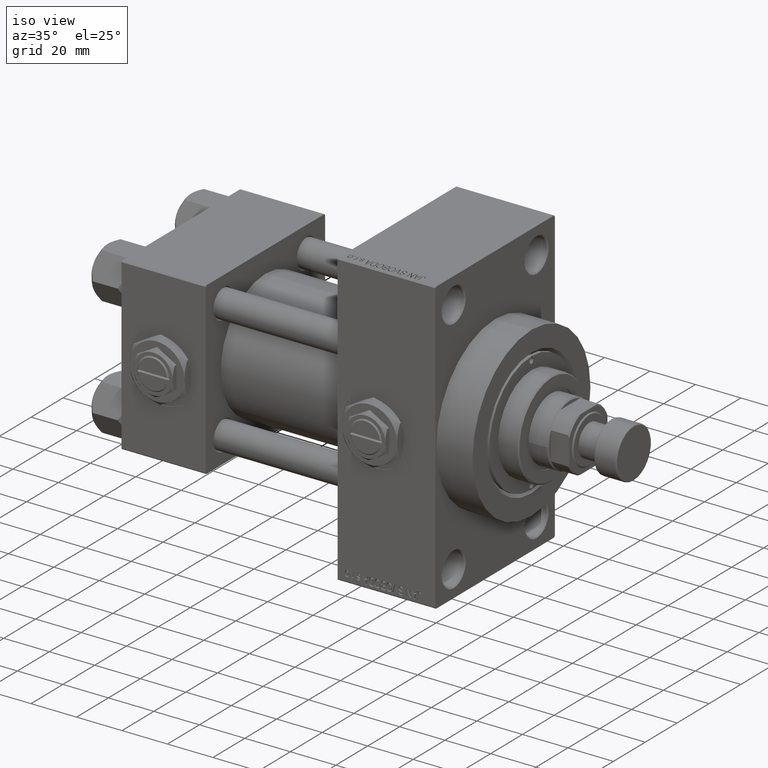
[diagram: clean part render]
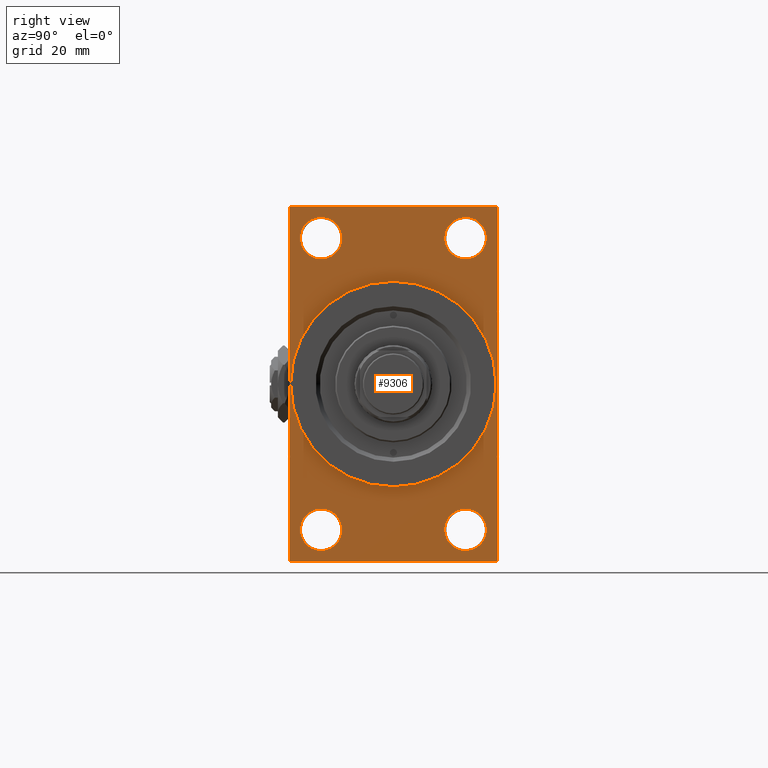
[diagram: tour spotlight — one face highlighted and labeled with its STEP entity id]
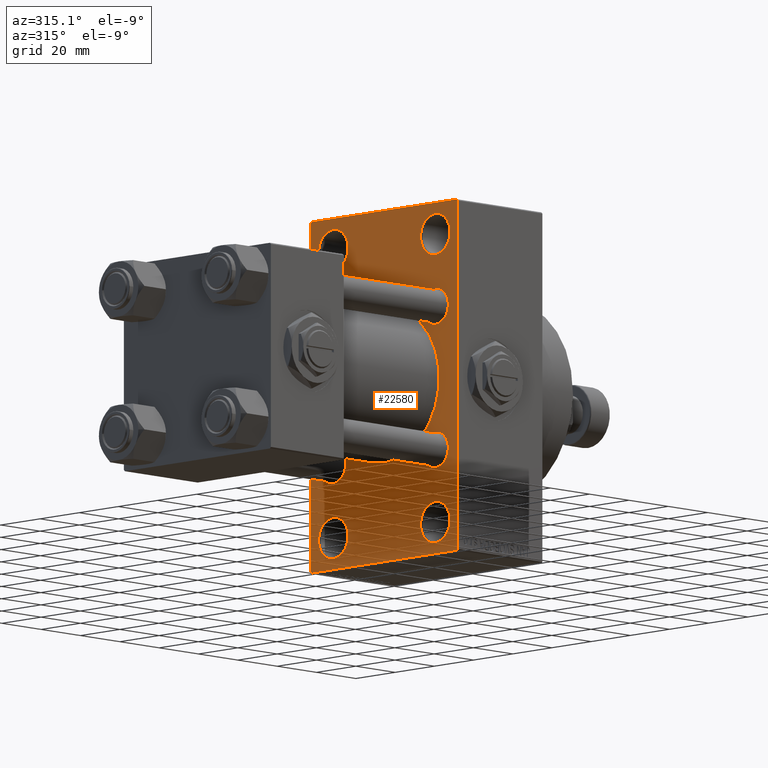
[diagram: tour spotlight — one face highlighted and labeled with its STEP entity id]
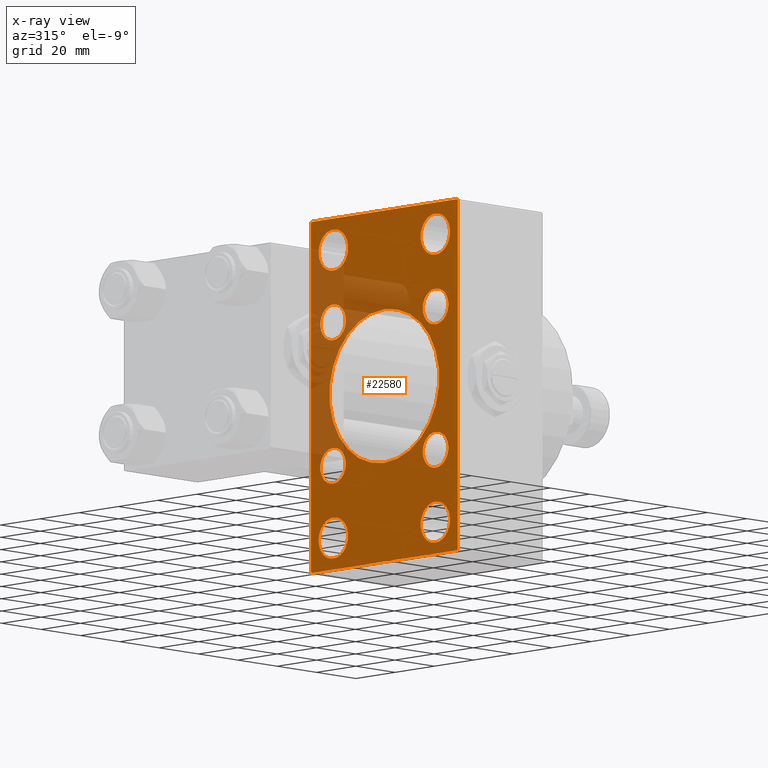
[diagram: x-ray of the same camera — body ghosted, this tour face saturated]
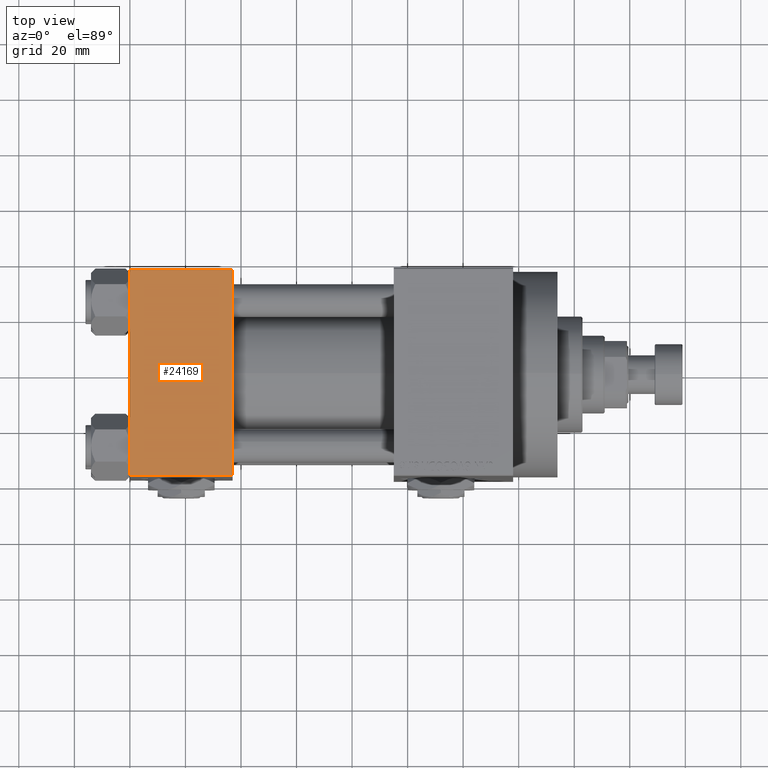
[diagram: tour spotlight — one face highlighted and labeled with its STEP entity id]
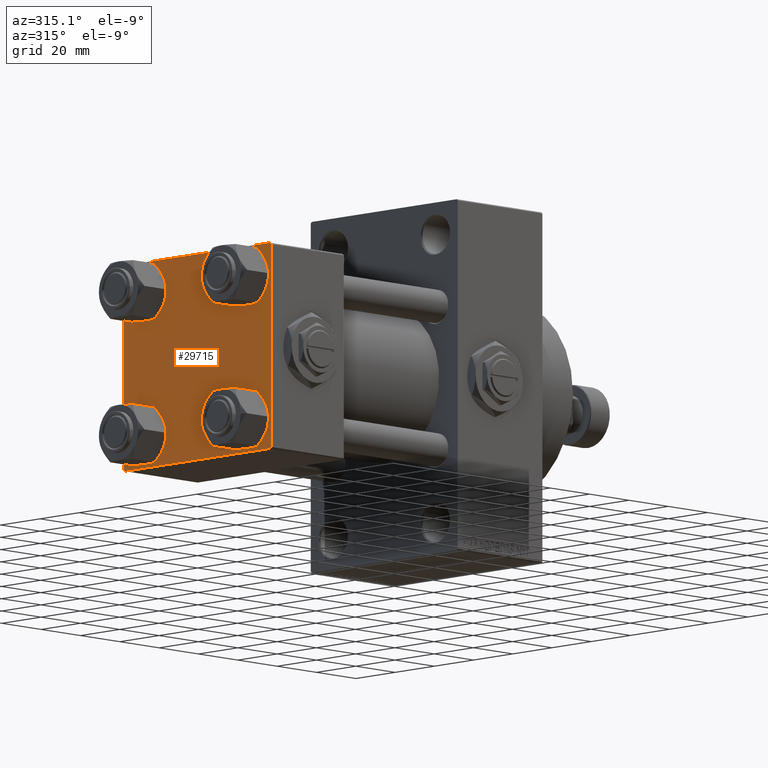
[diagram: tour spotlight — one face highlighted and labeled with its STEP entity id]
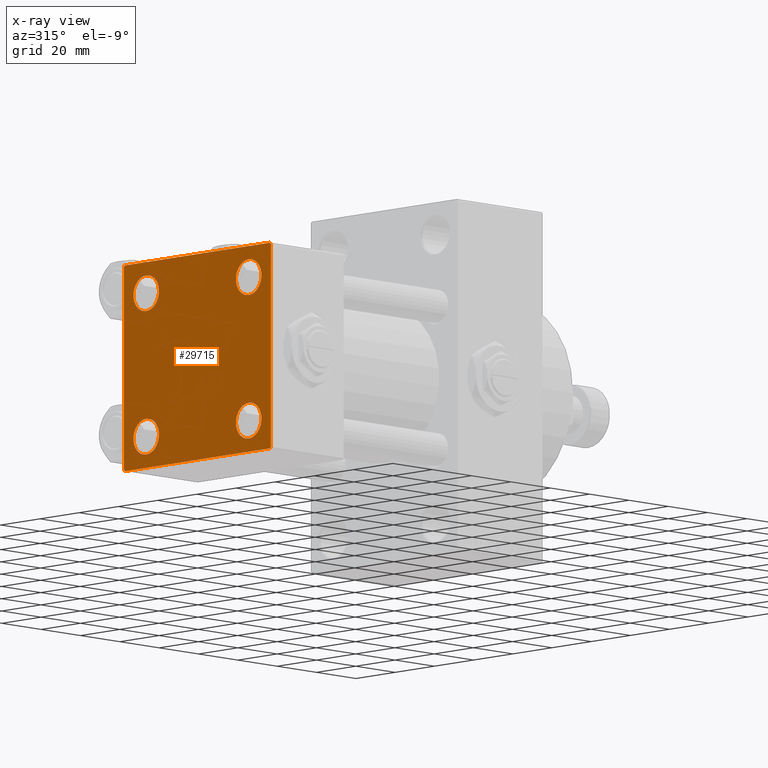
[diagram: x-ray of the same camera — body ghosted, this tour face saturated]
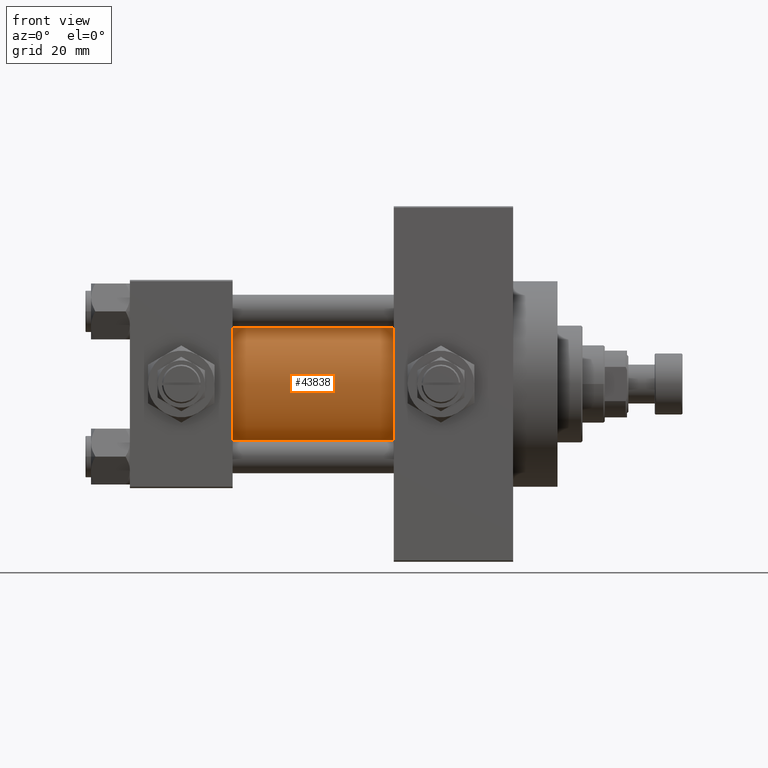
[diagram: tour spotlight — one face highlighted and labeled with its STEP entity id]
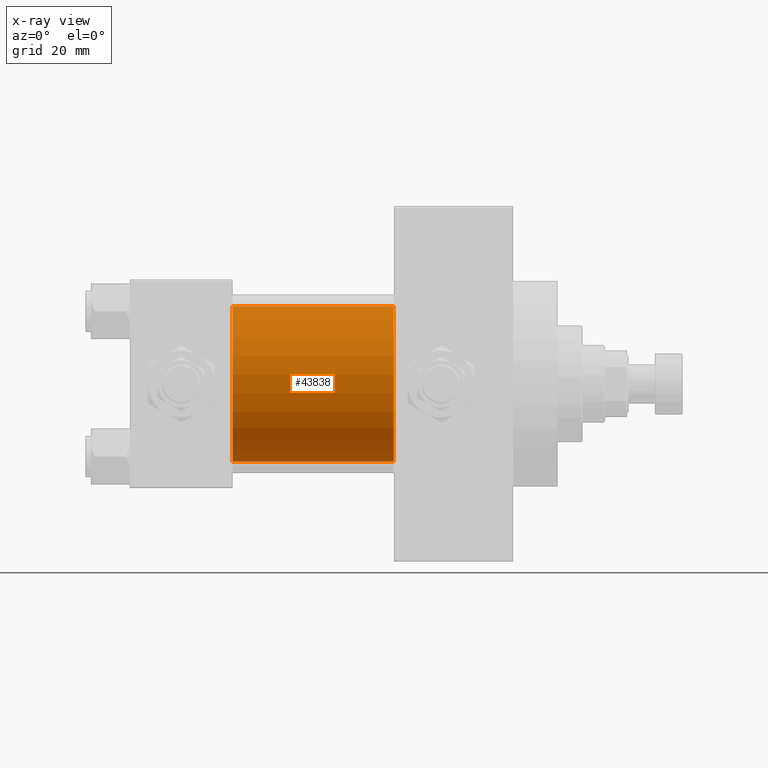
[diagram: x-ray of the same camera — body ghosted, this tour face saturated]
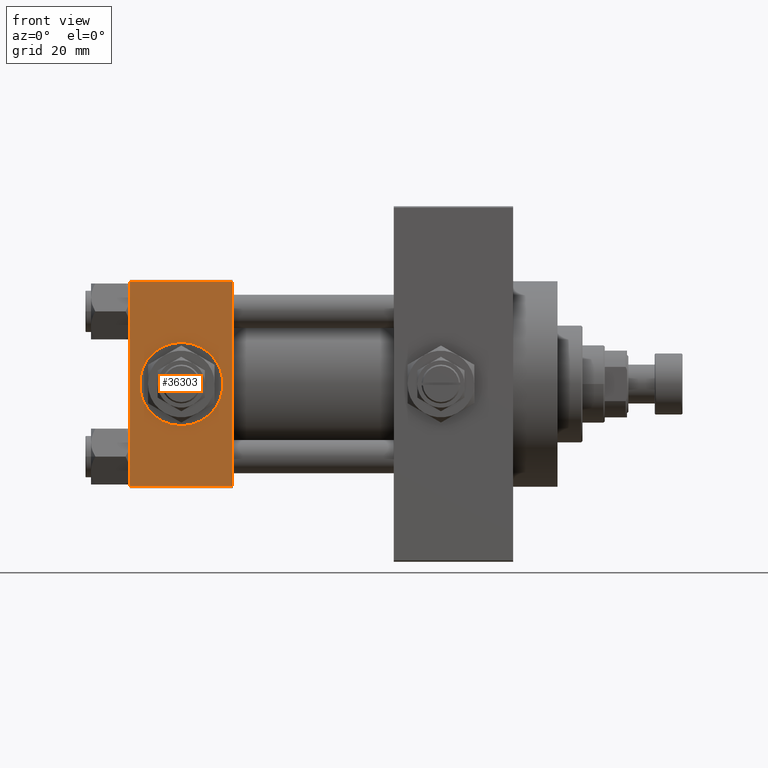
[diagram: tour spotlight — one face highlighted and labeled with its STEP entity id]
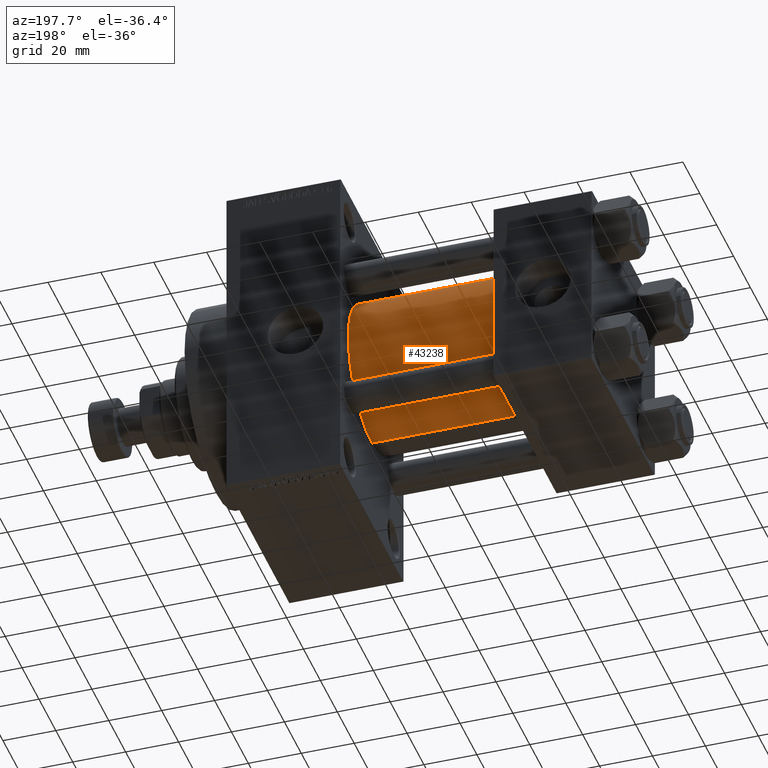
[diagram: tour spotlight — one face highlighted and labeled with its STEP entity id]
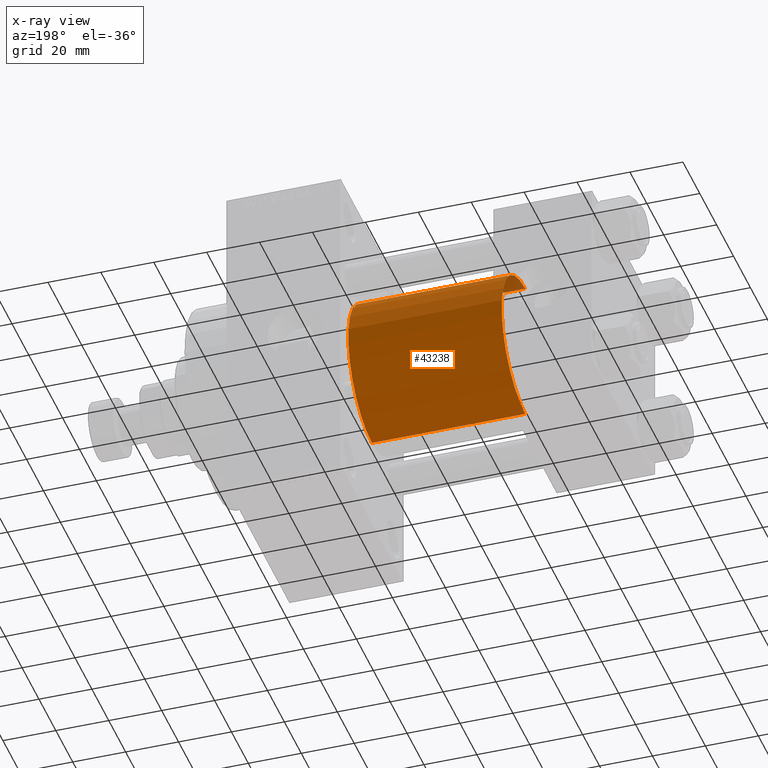
[diagram: x-ray of the same camera — body ghosted, this tour face saturated]
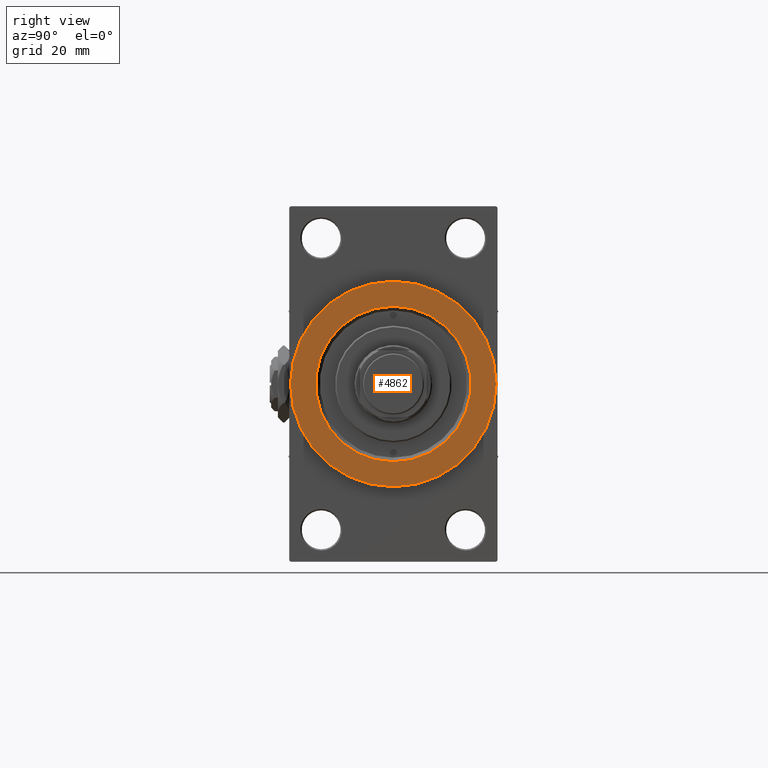
[diagram: tour spotlight — one face highlighted and labeled with its STEP entity id]
A machine part: a face-by-face anatomy tour. The part has 1227 B-rep faces; the first image is the clean iso view, then the 8 largest visible faces are spotlighted one at a time (largest first), each with its STEP entity span.

Face 1 — right view, entity #9306. In plain terms, the highlighted planar face has unit normal (-1, 0, 0).
Definition (entity closure, byte-faithful):
#930 = VERTEX_POINT ( 'NONE', #33132 ) ;
#1132 = VERTEX_POINT ( 'NONE', #7489 ) ;
#1176 = CARTESIAN_POINT ( 'NONE',  ( 138.0000000000000000, 0.000000000000000000, 0.000000000000000000 ) ) ;
#1496 = EDGE_CURVE ( 'NONE', #23930, #35746, #37761, .T. ) ;
#1660 = EDGE_LOOP ( 'NONE', ( #17729, #30826, #31170, #44039, #46018, #15695, #41033, #3115 ) ) ;
#1975 = CARTESIAN_POINT ( 'NONE',  ( 138.0000000000000000, -37.49999999999999289, -63.49999999999997158 ) ) ;
#2220 = CARTESIAN_POINT ( 'NONE',  ( 138.0000000000000000, 37.49999999999999289, -64.00000000000000000 ) ) ;
#2633 = FACE_BOUND ( 'NONE', #24262, .T. ) ;
#3115 = ORIENTED_EDGE ( 'NONE', *, *, #49571, .T. ) ;
#3270 = DIRECTION ( 'NONE',  ( 0.000000000000000000, 0.000000000000000000, -1.000000000000000000 ) ) ;
#3774 = VECTOR ( 'NONE', #46023, 1000.000000000000000 ) ;
#4127 = CIRCLE ( 'NONE', #32342, 7.500000000000007105 ) ;
#4151 = VERTEX_POINT ( 'NONE', #47309 ) ;
#5177 = EDGE_CURVE ( 'NONE', #20716, #25657, #19374, .T. ) ;
#5206 = VERTEX_POINT ( 'NONE', #44620 ) ;
#5487 = DIRECTION ( 'NONE',  ( 0.000000000000000000, 0.000000000000000000, 1.000000000000000000 ) ) ;
#6220 = CARTESIAN_POINT ( 'NONE',  ( 138.0000000000000000, 26.00000000000000000, -52.49999999999999289 ) ) ;
#6994 = CARTESIAN_POINT ( 'NONE',  ( 138.0000000000000000, 4.531193156845206793E-15, -37.00000000000000000 ) ) ;
#6997 = DIRECTION ( 'NONE',  ( 0.000000000000000000, 0.000000000000000000, 1.000000000000000000 ) ) ;
#7269 = CARTESIAN_POINT ( 'NONE',  ( 138.0000000000000000, 26.00000000000000000, 44.99999999999998579 ) ) ;
#7489 = CARTESIAN_POINT ( 'NONE',  ( 138.0000000000000000, -36.99999999999993605, -64.00000000000001421 ) ) ;
#7587 = EDGE_CURVE ( 'NONE', #25657, #20716, #4127, .T. ) ;
#7956 = DIRECTION ( 'NONE',  ( 0.000000000000000000, 0.000000000000000000, 1.000000000000000000 ) ) ;
#8476 = VECTOR ( 'NONE', #12574, 1000.000000000000000 ) ;
#8735 = EDGE_LOOP ( 'NONE', ( #27724, #49957 ) ) ;
#8926 = EDGE_CURVE ( 'NONE', #4151, #38365, #21129, .T. ) ;
#8961 = CARTESIAN_POINT ( 'NONE',  ( 138.0000000000000000, 37.49999999999999289, -63.50000000000001421 ) ) ;
#9306 = ADVANCED_FACE ( 'NONE', ( #2633, #13476, #17762, #10694, #37229, #41514 ), #36982, .F. ) ;
#9533 = LINE ( 'NONE', #16838, #29287 ) ;
#9705 = ORIENTED_EDGE ( 'NONE', *, *, #41869, .T. ) ;
#9862 = DIRECTION ( 'NONE',  ( -1.000000000000000000, 0.000000000000000000, -0.000000000000000000 ) ) ;
#10027 = AXIS2_PLACEMENT_3D ( 'NONE', #35377, #47499, #27537 ) ;
#10278 = CARTESIAN_POINT ( 'NONE',  ( 138.0000000000000000, 26.00000000000000000, 52.49999999999999289 ) ) ;
#10392 = EDGE_LOOP ( 'NONE', ( #31915, #18953 ) ) ;
#10694 = FACE_BOUND ( 'NONE', #10392, .T. ) ;
#11433 = EDGE_CURVE ( 'NONE', #23930, #27556, #28242, .T. ) ;
#12178 = AXIS2_PLACEMENT_3D ( 'NONE', #27157, #42568, #7956 ) ;
#12252 = AXIS2_PLACEMENT_3D ( 'NONE', #43874, #36041, #5487 ) ;
#12574 = DIRECTION ( 'NONE',  ( 0.000000000000000000, -1.000000000000000000, -1.850371707708594563E-16 ) ) ;
#12596 = AXIS2_PLACEMENT_3D ( 'NONE', #10278, #39849, #6997 ) ;
#12628 = VERTEX_POINT ( 'NONE', #43111 ) ;
#13476 = FACE_BOUND ( 'NONE', #15048, .T. ) ;
#13809 = CARTESIAN_POINT ( 'NONE',  ( 138.0000000000000000, 26.00000000000000000, 52.49999999999999289 ) ) ;
#14320 = ORIENTED_EDGE ( 'NONE', *, *, #31517, .T. ) ;
#15048 = EDGE_LOOP ( 'NONE', ( #15736, #14320 ) ) ;
#15211 = DIRECTION ( 'NONE',  ( 0.000000000000000000, 0.000000000000000000, 1.000000000000000000 ) ) ;
#15462 = AXIS2_PLACEMENT_3D ( 'NONE', #44559, #22062, #25369 ) ;
#15695 = ORIENTED_EDGE ( 'NONE', *, *, #1496, .T. ) ;
#15736 = ORIENTED_EDGE ( 'NONE', *, *, #33313, .T. ) ;
#16537 = DIRECTION ( 'NONE',  ( 1.000000000000000000, 0.000000000000000000, 0.000000000000000000 ) ) ;
#16680 = CIRCLE ( 'NONE', #44830, 37.00000000000000000 ) ;
#16838 = CARTESIAN_POINT ( 'NONE',  ( 138.0000000000000000, -36.99999999999993605, -64.00000000000001421 ) ) ;
#17729 = ORIENTED_EDGE ( 'NONE', *, *, #27190, .T. ) ;
#17762 = FACE_BOUND ( 'NONE', #8735, .T. ) ;
#17817 = DIRECTION ( 'NONE',  ( -1.000000000000000000, 0.000000000000000000, -0.000000000000000000 ) ) ;
#17991 = ORIENTED_EDGE ( 'NONE', *, *, #8926, .T. ) ;
#18185 = AXIS2_PLACEMENT_3D ( 'NONE', #32443, #47870, #40277 ) ;
#18292 = CARTESIAN_POINT ( 'NONE',  ( 138.0000000000000000, 36.99999999999997158, 63.99999999999998579 ) ) ;
#18399 = CARTESIAN_POINT ( 'NONE',  ( 138.0000000000000000, -37.49999999999999289, 63.99999999999997158 ) ) ;
#18648 = LINE ( 'NONE', #18399, #39396 ) ;
#18953 = ORIENTED_EDGE ( 'NONE', *, *, #40631, .T. ) ;
#18986 = LINE ( 'NONE', #46285, #3774 ) ;
#19162 = CARTESIAN_POINT ( 'NONE',  ( 138.0000000000000000, -25.99999999999999645, -44.99999999999998579 ) ) ;
#19374 = CIRCLE ( 'NONE', #36324, 7.500000000000007105 ) ;
#19661 = LINE ( 'NONE', #19910, #34126 ) ;
#19818 = DIRECTION ( 'NONE',  ( 0.000000000000000000, 0.000000000000000000, 1.000000000000000000 ) ) ;
#19910 = CARTESIAN_POINT ( 'NONE',  ( 138.0000000000000000, 37.49999999999999289, -63.50000000000001421 ) ) ;
#19948 = CIRCLE ( 'NONE', #18185, 37.00000000000000000 ) ;
#20640 = DIRECTION ( 'NONE',  ( 0.000000000000000000, 0.7071067811865574537, -0.7071067811865376918 ) ) ;
#20716 = VERTEX_POINT ( 'NONE', #38091 ) ;
#21129 = CIRCLE ( 'NONE', #12252, 7.500000000000007105 ) ;
#22062 = DIRECTION ( 'NONE',  ( -1.000000000000000000, 0.000000000000000000, -0.000000000000000000 ) ) ;
#22910 = AXIS2_PLACEMENT_3D ( 'NONE', #13809, #25457, #40859 ) ;
#23703 = DIRECTION ( 'NONE',  ( -0.000000000000000000, 0.7071067811865573427, 0.7071067811865378028 ) ) ;
#23930 = VERTEX_POINT ( 'NONE', #35116 ) ;
#24238 = CARTESIAN_POINT ( 'NONE',  ( 138.0000000000000000, -25.99999999999999645, -52.49999999999999289 ) ) ;
#24262 = EDGE_LOOP ( 'NONE', ( #9705, #17991 ) ) ;
#24629 = EDGE_CURVE ( 'NONE', #27402, #5206, #19948, .T. ) ;
#25369 = DIRECTION ( 'NONE',  ( -0.000000000000000000, 0.000000000000000000, 1.000000000000000000 ) ) ;
#25457 = DIRECTION ( 'NONE',  ( -1.000000000000000000, 0.000000000000000000, -0.000000000000000000 ) ) ;
#25585 = VERTEX_POINT ( 'NONE', #19162 ) ;
#25657 = VERTEX_POINT ( 'NONE', #44388 ) ;
#25686 = EDGE_CURVE ( 'NONE', #35635, #12628, #39231, .T. ) ;
#25730 = VECTOR ( 'NONE', #33715, 1000.000000000000000 ) ;
#25936 = VERTEX_POINT ( 'NONE', #39425 ) ;
#27157 = CARTESIAN_POINT ( 'NONE',  ( 138.0000000000000000, -25.99999999999999645, -52.49999999999999289 ) ) ;
#27190 = EDGE_CURVE ( 'NONE', #45788, #46893, #18648, .T. ) ;
#27402 = VERTEX_POINT ( 'NONE', #6994 ) ;
#27520 = DIRECTION ( 'NONE',  ( 0.000000000000000000, 0.000000000000000000, 1.000000000000000000 ) ) ;
#27537 = DIRECTION ( 'NONE',  ( 0.000000000000000000, 0.000000000000000000, 1.000000000000000000 ) ) ;
#27556 = VERTEX_POINT ( 'NONE', #8961 ) ;
#27665 = CARTESIAN_POINT ( 'NONE',  ( 138.0000000000000000, -37.49999999999999289, 63.49999999999994316 ) ) ;
#27724 = ORIENTED_EDGE ( 'NONE', *, *, #7587, .T. ) ;
#28242 = LINE ( 'NONE', #43654, #34011 ) ;
#28995 = DIRECTION ( 'NONE',  ( 0.000000000000000000, -5.421010862427522170E-17, -1.000000000000000000 ) ) ;
#29181 = CARTESIAN_POINT ( 'NONE',  ( 138.0000000000000000, -25.99999999999999645, -60.00000000000000000 ) ) ;
#29287 = VECTOR ( 'NONE', #20640, 999.9999999999998863 ) ;
#29608 = ORIENTED_EDGE ( 'NONE', *, *, #24629, .F. ) ;
#30180 = ORIENTED_EDGE ( 'NONE', *, *, #48105, .F. ) ;
#30770 = CIRCLE ( 'NONE', #12178, 7.500000000000007105 ) ;
#30826 = ORIENTED_EDGE ( 'NONE', *, *, #38533, .T. ) ;
#30840 = AXIS2_PLACEMENT_3D ( 'NONE', #24238, #36100, #27520 ) ;
#31170 = ORIENTED_EDGE ( 'NONE', *, *, #41058, .F. ) ;
#31517 = EDGE_CURVE ( 'NONE', #25585, #49130, #30770, .T. ) ;
#31805 = CIRCLE ( 'NONE', #10027, 7.500000000000007105 ) ;
#31915 = ORIENTED_EDGE ( 'NONE', *, *, #25686, .T. ) ;
#31966 = DIRECTION ( 'NONE',  ( 0.000000000000000000, 0.000000000000000000, -1.000000000000000000 ) ) ;
#32342 = AXIS2_PLACEMENT_3D ( 'NONE', #44475, #9862, #19818 ) ;
#32443 = CARTESIAN_POINT ( 'NONE',  ( 138.0000000000000000, 0.000000000000000000, 0.000000000000000000 ) ) ;
#33132 = CARTESIAN_POINT ( 'NONE',  ( 138.0000000000000000, -36.99999999999995737, 63.99999999999997158 ) ) ;
#33313 = EDGE_CURVE ( 'NONE', #49130, #25585, #34875, .T. ) ;
#33715 = DIRECTION ( 'NONE',  ( 0.000000000000000000, -0.7071067811865672237, 0.7071067811865279218 ) ) ;
#34011 = VECTOR ( 'NONE', #28995, 1000.000000000000000 ) ;
#34126 = VECTOR ( 'NONE', #23703, 1000.000000000000000 ) ;
#34540 = CARTESIAN_POINT ( 'NONE',  ( 138.0000000000000000, 36.99999999999997158, 63.99999999999998579 ) ) ;
#34875 = CIRCLE ( 'NONE', #30840, 7.500000000000007105 ) ;
#35116 = CARTESIAN_POINT ( 'NONE',  ( 138.0000000000000000, 37.50000000000000000, 63.49999999999998579 ) ) ;
#35377 = CARTESIAN_POINT ( 'NONE',  ( 138.0000000000000000, -25.99999999999999645, 52.50000000000000000 ) ) ;
#35635 = VERTEX_POINT ( 'NONE', #7269 ) ;
#35746 = VERTEX_POINT ( 'NONE', #34540 ) ;
#36041 = DIRECTION ( 'NONE',  ( -1.000000000000000000, 0.000000000000000000, -0.000000000000000000 ) ) ;
#36100 = DIRECTION ( 'NONE',  ( -1.000000000000000000, 0.000000000000000000, -0.000000000000000000 ) ) ;
#36324 = AXIS2_PLACEMENT_3D ( 'NONE', #6220, #17817, #15211 ) ;
#36982 = PLANE ( 'NONE',  #15462 ) ;
#37229 = FACE_BOUND ( 'NONE', #46388, .T. ) ;
#37761 = LINE ( 'NONE', #18292, #25730 ) ;
#38091 = CARTESIAN_POINT ( 'NONE',  ( 138.0000000000000000, 26.00000000000000000, -44.99999999999998579 ) ) ;
#38365 = VERTEX_POINT ( 'NONE', #48560 ) ;
#38444 = EDGE_CURVE ( 'NONE', #25936, #27556, #19661, .T. ) ;
#38533 = EDGE_CURVE ( 'NONE', #46893, #1132, #9533, .T. ) ;
#39231 = CIRCLE ( 'NONE', #12596, 7.500000000000007105 ) ;
#39396 = VECTOR ( 'NONE', #3270, 1000.000000000000000 ) ;
#39425 = CARTESIAN_POINT ( 'NONE',  ( 138.0000000000000000, 36.99999999999999289, -64.00000000000000000 ) ) ;
#39849 = DIRECTION ( 'NONE',  ( -1.000000000000000000, 0.000000000000000000, -0.000000000000000000 ) ) ;
#39861 = LINE ( 'NONE', #47206, #8476 ) ;
#40277 = DIRECTION ( 'NONE',  ( 0.000000000000000000, 0.000000000000000000, -1.000000000000000000 ) ) ;
#40631 = EDGE_CURVE ( 'NONE', #12628, #35635, #49541, .T. ) ;
#40859 = DIRECTION ( 'NONE',  ( 0.000000000000000000, 0.000000000000000000, 1.000000000000000000 ) ) ;
#41033 = ORIENTED_EDGE ( 'NONE', *, *, #43060, .T. ) ;
#41058 = EDGE_CURVE ( 'NONE', #25936, #1132, #44632, .T. ) ;
#41084 = DIRECTION ( 'NONE',  ( 0.000000000000000000, -1.000000000000000000, -1.850371707708594563E-16 ) ) ;
#41514 = FACE_OUTER_BOUND ( 'NONE', #1660, .T. ) ;
#41869 = EDGE_CURVE ( 'NONE', #38365, #4151, #31805, .T. ) ;
#42568 = DIRECTION ( 'NONE',  ( -1.000000000000000000, 0.000000000000000000, -0.000000000000000000 ) ) ;
#43060 = EDGE_CURVE ( 'NONE', #35746, #930, #39861, .T. ) ;
#43111 = CARTESIAN_POINT ( 'NONE',  ( 138.0000000000000000, 26.00000000000000000, 60.00000000000000000 ) ) ;
#43654 = CARTESIAN_POINT ( 'NONE',  ( 138.0000000000000000, 37.50000000000000000, 63.99999999999998579 ) ) ;
#43874 = CARTESIAN_POINT ( 'NONE',  ( 138.0000000000000000, -25.99999999999999645, 52.50000000000000000 ) ) ;
#43926 = VECTOR ( 'NONE', #41084, 1000.000000000000000 ) ;
#44039 = ORIENTED_EDGE ( 'NONE', *, *, #38444, .T. ) ;
#44388 = CARTESIAN_POINT ( 'NONE',  ( 138.0000000000000000, 26.00000000000000000, -60.00000000000000000 ) ) ;
#44475 = CARTESIAN_POINT ( 'NONE',  ( 138.0000000000000000, 26.00000000000000000, -52.49999999999999289 ) ) ;
#44559 = CARTESIAN_POINT ( 'NONE',  ( 138.0000000000000000, 0.000000000000000000, 0.000000000000000000 ) ) ;
#44620 = CARTESIAN_POINT ( 'NONE',  ( 138.0000000000000000, 0.000000000000000000, 37.00000000000000000 ) ) ;
#44632 = LINE ( 'NONE', #2220, #43926 ) ;
#44830 = AXIS2_PLACEMENT_3D ( 'NONE', #1176, #16537, #31966 ) ;
#45788 = VERTEX_POINT ( 'NONE', #27665 ) ;
#46018 = ORIENTED_EDGE ( 'NONE', *, *, #11433, .F. ) ;
#46023 = DIRECTION ( 'NONE',  ( -0.000000000000000000, -0.7071067811865524577, -0.7071067811865426878 ) ) ;
#46285 = CARTESIAN_POINT ( 'NONE',  ( 138.0000000000000000, -37.49999999999999289, 63.49999999999994316 ) ) ;
#46388 = EDGE_LOOP ( 'NONE', ( #30180, #29608 ) ) ;
#46893 = VERTEX_POINT ( 'NONE', #1975 ) ;
#47206 = CARTESIAN_POINT ( 'NONE',  ( 138.0000000000000000, 37.50000000000000000, 63.99999999999998579 ) ) ;
#47309 = CARTESIAN_POINT ( 'NONE',  ( 138.0000000000000000, -25.99999999999999645, 60.00000000000000711 ) ) ;
#47499 = DIRECTION ( 'NONE',  ( -1.000000000000000000, 0.000000000000000000, -0.000000000000000000 ) ) ;
#47870 = DIRECTION ( 'NONE',  ( 1.000000000000000000, 0.000000000000000000, 0.000000000000000000 ) ) ;
#48105 = EDGE_CURVE ( 'NONE', #5206, #27402, #16680, .T. ) ;
#48560 = CARTESIAN_POINT ( 'NONE',  ( 138.0000000000000000, -25.99999999999999645, 44.99999999999999289 ) ) ;
#49130 = VERTEX_POINT ( 'NONE', #29181 ) ;
#49541 = CIRCLE ( 'NONE', #22910, 7.500000000000007105 ) ;
#49571 = EDGE_CURVE ( 'NONE', #930, #45788, #18986, .T. ) ;
#49957 = ORIENTED_EDGE ( 'NONE', *, *, #5177, .T. ) ;

Face 2 — auxiliary view, entity #22580. An x-ray twin of the same camera follows (body ghosted, this face saturated) — the face is partly hidden behind the body. In plain terms, the highlighted planar face has unit normal (-1, 0, 0).
Definition (entity closure, byte-faithful):
#74 = DIRECTION ( 'NONE',  ( 1.000000000000000000, -0.000000000000000000, 0.000000000000000000 ) ) ;
#79 = AXIS2_PLACEMENT_3D ( 'NONE', #3595, #15935, #27552 ) ;
#91 = DIRECTION ( 'NONE',  ( 1.000000000000000000, -0.000000000000000000, 0.000000000000000000 ) ) ;
#215 = EDGE_CURVE ( 'NONE', #27382, #39228, #34402, .T. ) ;
#275 = CARTESIAN_POINT ( 'NONE',  ( 95.00000000000000000, -37.49999999999999289, 63.99999999999997158 ) ) ;
#774 = EDGE_CURVE ( 'NONE', #20447, #14801, #47322, .T. ) ;
#790 = DIRECTION ( 'NONE',  ( 1.000000000000000000, -0.000000000000000000, 0.000000000000000000 ) ) ;
#793 = DIRECTION ( 'NONE',  ( 0.000000000000000000, 0.000000000000000000, 1.000000000000000000 ) ) ;
#1304 = VERTEX_POINT ( 'NONE', #17032 ) ;
#1416 = VERTEX_POINT ( 'NONE', #37502 ) ;
#1609 = EDGE_CURVE ( 'NONE', #10664, #1803, #21674, .T. ) ;
#1803 = VERTEX_POINT ( 'NONE', #24414 ) ;
#1933 = EDGE_LOOP ( 'NONE', ( #13312, #15314 ) ) ;
#2150 = AXIS2_PLACEMENT_3D ( 'NONE', #7662, #23328, #43019 ) ;
#2205 = EDGE_CURVE ( 'NONE', #42353, #9309, #28938, .T. ) ;
#2382 = FACE_BOUND ( 'NONE', #6526, .T. ) ;
#2434 = CARTESIAN_POINT ( 'NONE',  ( 95.00000000000000000, -25.99999999999999645, 45.00000000000002132 ) ) ;
#2889 = VERTEX_POINT ( 'NONE', #36729 ) ;
#2957 = DIRECTION ( 'NONE',  ( 1.000000000000000000, -0.000000000000000000, 0.000000000000000000 ) ) ;
#3163 = ORIENTED_EDGE ( 'NONE', *, *, #18166, .T. ) ;
#3170 = AXIS2_PLACEMENT_3D ( 'NONE', #27365, #42534, #38743 ) ;
#3257 = EDGE_CURVE ( 'NONE', #24955, #23325, #5607, .T. ) ;
#3337 = CIRCLE ( 'NONE', #45267, 7.499999999999978684 ) ;
#3415 = VECTOR ( 'NONE', #48622, 1000.000000000000000 ) ;
#3595 = CARTESIAN_POINT ( 'NONE',  ( 95.00000000000000000, 26.14999999999999858, -26.15000000000000213 ) ) ;
#3826 = CARTESIAN_POINT ( 'NONE',  ( 95.00000000000000000, 36.99999999999997158, 63.99999999999998579 ) ) ;
#4472 = ORIENTED_EDGE ( 'NONE', *, *, #43971, .T. ) ;
#4598 = CIRCLE ( 'NONE', #33612, 6.500000000000008882 ) ;
#4878 = CARTESIAN_POINT ( 'NONE',  ( 95.00000000000000000, -37.49999999999999289, -63.49999999999997158 ) ) ;
#4893 = CIRCLE ( 'NONE', #79, 6.500000000000008882 ) ;
#5416 = FACE_BOUND ( 'NONE', #39118, .T. ) ;
#5563 = CARTESIAN_POINT ( 'NONE',  ( 95.00000000000000000, -26.14999999999999147, 32.65000000000001990 ) ) ;
#5607 = LINE ( 'NONE', #21000, #34624 ) ;
#5814 = CIRCLE ( 'NONE', #34054, 7.499999999999978684 ) ;
#5924 = ORIENTED_EDGE ( 'NONE', *, *, #42357, .T. ) ;
#5946 = ORIENTED_EDGE ( 'NONE', *, *, #215, .T. ) ;
#6046 = CARTESIAN_POINT ( 'NONE',  ( 95.00000000000000000, -25.99999999999999645, -52.49999999999999289 ) ) ;
#6319 = CIRCLE ( 'NONE', #40217, 6.500000000000008882 ) ;
#6526 = EDGE_LOOP ( 'NONE', ( #13105, #3163 ) ) ;
#6567 = EDGE_CURVE ( 'NONE', #14801, #20447, #3337, .T. ) ;
#7245 = VERTEX_POINT ( 'NONE', #4878 ) ;
#7364 = CARTESIAN_POINT ( 'NONE',  ( 95.00000000000000000, -37.49999999999999289, 63.49999999999994316 ) ) ;
#7429 = EDGE_CURVE ( 'NONE', #2889, #16091, #22371, .T. ) ;
#7595 = CARTESIAN_POINT ( 'NONE',  ( 95.00000000000000000, 26.14999999999999858, -32.65000000000001279 ) ) ;
#7662 = CARTESIAN_POINT ( 'NONE',  ( 95.00000000000000000, -25.99999999999999645, 52.50000000000000000 ) ) ;
#7671 = DIRECTION ( 'NONE',  ( 0.000000000000000000, 0.000000000000000000, 1.000000000000000000 ) ) ;
#7875 = EDGE_CURVE ( 'NONE', #45773, #31959, #23524, .T. ) ;
#7961 = ORIENTED_EDGE ( 'NONE', *, *, #26871, .T. ) ;
#8034 = DIRECTION ( 'NONE',  ( 0.000000000000000000, 0.7071067811865672237, -0.7071067811865279218 ) ) ;
#8259 = EDGE_CURVE ( 'NONE', #23325, #2889, #37793, .T. ) ;
#8270 = CARTESIAN_POINT ( 'NONE',  ( 95.00000000000000000, 37.49999999999999289, -63.50000000000001421 ) ) ;
#8301 = ORIENTED_EDGE ( 'NONE', *, *, #45172, .T. ) ;
#8480 = EDGE_LOOP ( 'NONE', ( #16485, #30954 ) ) ;
#9246 = EDGE_CURVE ( 'NONE', #34068, #20401, #40020, .T. ) ;
#9297 = CARTESIAN_POINT ( 'NONE',  ( 95.00000000000000000, 26.14999999999999858, -19.64999999999999503 ) ) ;
#9309 = VERTEX_POINT ( 'NONE', #13972 ) ;
#9501 = CARTESIAN_POINT ( 'NONE',  ( 95.00000000000000000, -50.49999999999945999, -50.50000000000086686 ) ) ;
#9753 = EDGE_CURVE ( 'NONE', #42462, #22704, #42919, .T. ) ;
#9809 = VECTOR ( 'NONE', #27012, 1000.000000000000000 ) ;
#10095 = CIRCLE ( 'NONE', #12541, 6.500000000000008882 ) ;
#10619 = DIRECTION ( 'NONE',  ( 0.000000000000000000, -5.421010862427522170E-17, -1.000000000000000000 ) ) ;
#10664 = VERTEX_POINT ( 'NONE', #13997 ) ;
#10737 = CARTESIAN_POINT ( 'NONE',  ( 95.00000000000000000, -26.14999999999999147, -19.65000000000000213 ) ) ;
#10853 = EDGE_LOOP ( 'NONE', ( #28228, #8301 ) ) ;
#11362 = LINE ( 'NONE', #11869, #32498 ) ;
#11869 = CARTESIAN_POINT ( 'NONE',  ( 95.00000000000000000, -50.49999999999970868, 50.50000000000040501 ) ) ;
#12491 = CARTESIAN_POINT ( 'NONE',  ( 95.00000000000000000, -2.602085213965210642E-15, 0.000000000000000000 ) ) ;
#12541 = AXIS2_PLACEMENT_3D ( 'NONE', #35413, #91, #31378 ) ;
#12612 = DIRECTION ( 'NONE',  ( 0.000000000000000000, 0.000000000000000000, 1.000000000000000000 ) ) ;
#12797 = LINE ( 'NONE', #23951, #37372 ) ;
#12953 = FACE_BOUND ( 'NONE', #22678, .T. ) ;
#13105 = ORIENTED_EDGE ( 'NONE', *, *, #9753, .T. ) ;
#13312 = ORIENTED_EDGE ( 'NONE', *, *, #36896, .T. ) ;
#13394 = CIRCLE ( 'NONE', #40027, 7.499999999999978684 ) ;
#13432 = EDGE_LOOP ( 'NONE', ( #35569, #21231 ) ) ;
#13972 = CARTESIAN_POINT ( 'NONE',  ( 95.00000000000000000, 26.00000000000000000, -45.00000000000001421 ) ) ;
#13997 = CARTESIAN_POINT ( 'NONE',  ( 95.00000000000000000, -25.99999999999999645, -45.00000000000001421 ) ) ;
#14051 = VERTEX_POINT ( 'NONE', #10737 ) ;
#14222 = AXIS2_PLACEMENT_3D ( 'NONE', #37553, #2957, #26179 ) ;
#14801 = VERTEX_POINT ( 'NONE', #2434 ) ;
#15017 = AXIS2_PLACEMENT_3D ( 'NONE', #6046, #29029, #48760 ) ;
#15137 = CARTESIAN_POINT ( 'NONE',  ( 95.00000000000000000, -36.99999999999995737, 63.99999999999997158 ) ) ;
#15236 = CARTESIAN_POINT ( 'NONE',  ( 95.00000000000000000, -26.14999999999999147, -26.15000000000000924 ) ) ;
#15314 = ORIENTED_EDGE ( 'NONE', *, *, #2205, .T. ) ;
#15501 = CARTESIAN_POINT ( 'NONE',  ( 95.00000000000000000, 26.14999999999999858, -26.15000000000000213 ) ) ;
#15935 = DIRECTION ( 'NONE',  ( 1.000000000000000000, -0.000000000000000000, 0.000000000000000000 ) ) ;
#16091 = VERTEX_POINT ( 'NONE', #16123 ) ;
#16123 = CARTESIAN_POINT ( 'NONE',  ( 95.00000000000000000, -36.99999999999993605, -64.00000000000001421 ) ) ;
#16193 = VERTEX_POINT ( 'NONE', #9297 ) ;
#16485 = ORIENTED_EDGE ( 'NONE', *, *, #774, .T. ) ;
#16606 = CIRCLE ( 'NONE', #24714, 28.00000000000000000 ) ;
#16625 = CARTESIAN_POINT ( 'NONE',  ( 95.00000000000000000, -2.602085213965210642E-15, 0.000000000000000000 ) ) ;
#16872 = DIRECTION ( 'NONE',  ( 0.000000000000000000, 0.000000000000000000, -1.000000000000000000 ) ) ;
#17032 = CARTESIAN_POINT ( 'NONE',  ( 95.00000000000000000, -26.14999999999999147, -32.65000000000001990 ) ) ;
#17456 = ORIENTED_EDGE ( 'NONE', *, *, #8259, .T. ) ;
#17623 = EDGE_CURVE ( 'NONE', #16091, #7245, #28438, .T. ) ;
#17649 = DIRECTION ( 'NONE',  ( 1.000000000000000000, -0.000000000000000000, 0.000000000000000000 ) ) ;
#18166 = EDGE_CURVE ( 'NONE', #22704, #42462, #36673, .T. ) ;
#18258 = CARTESIAN_POINT ( 'NONE',  ( 95.00000000000000000, 26.00000000000000000, -52.49999999999999289 ) ) ;
#19245 = CARTESIAN_POINT ( 'NONE',  ( 95.00000000000000000, 26.00000000000000000, 52.49999999999999289 ) ) ;
#19753 = DIRECTION ( 'NONE',  ( 0.000000000000000000, 0.000000000000000000, 1.000000000000000000 ) ) ;
#19969 = DIRECTION ( 'NONE',  ( 1.000000000000000000, -0.000000000000000000, 0.000000000000000000 ) ) ;
#20301 = AXIS2_PLACEMENT_3D ( 'NONE', #16625, #28258, #16872 ) ;
#20349 = ORIENTED_EDGE ( 'NONE', *, *, #7429, .T. ) ;
#20401 = VERTEX_POINT ( 'NONE', #15137 ) ;
#20447 = VERTEX_POINT ( 'NONE', #39142 ) ;
#20684 = AXIS2_PLACEMENT_3D ( 'NONE', #20811, #36222, #32428 ) ;
#20811 = CARTESIAN_POINT ( 'NONE',  ( 95.00000000000000000, 0.000000000000000000, 0.000000000000000000 ) ) ;
#20884 = AXIS2_PLACEMENT_3D ( 'NONE', #18258, #45802, #37966 ) ;
#21000 = CARTESIAN_POINT ( 'NONE',  ( 95.00000000000000000, 37.50000000000000000, 63.99999999999998579 ) ) ;
#21199 = CARTESIAN_POINT ( 'NONE',  ( 95.00000000000000000, -25.99999999999999645, 52.50000000000000000 ) ) ;
#21231 = ORIENTED_EDGE ( 'NONE', *, *, #45868, .T. ) ;
#21555 = FACE_BOUND ( 'NONE', #10853, .T. ) ;
#21674 = CIRCLE ( 'NONE', #3170, 7.499999999999978684 ) ;
#22371 = LINE ( 'NONE', #26644, #40422 ) ;
#22580 = ADVANCED_FACE ( 'NONE', ( #40752, #5416, #44800, #21555, #36973, #2382, #32181, #12953, #28384, #43805 ), #28637, .T. ) ;
#22678 = EDGE_LOOP ( 'NONE', ( #4472, #5924 ) ) ;
#22704 = VERTEX_POINT ( 'NONE', #38707 ) ;
#22965 = ORIENTED_EDGE ( 'NONE', *, *, #46496, .T. ) ;
#23100 = DIRECTION ( 'NONE',  ( 1.000000000000000000, -0.000000000000000000, 0.000000000000000000 ) ) ;
#23325 = VERTEX_POINT ( 'NONE', #8270 ) ;
#23328 = DIRECTION ( 'NONE',  ( 1.000000000000000000, -0.000000000000000000, 0.000000000000000000 ) ) ;
#23524 = CIRCLE ( 'NONE', #20301, 28.00000000000000000 ) ;
#23640 = CARTESIAN_POINT ( 'NONE',  ( 95.00000000000000000, -2.602085213965210642E-15, 28.00000000000000000 ) ) ;
#23650 = ORIENTED_EDGE ( 'NONE', *, *, #28788, .T. ) ;
#23951 = CARTESIAN_POINT ( 'NONE',  ( 95.00000000000000000, 50.49999999999894840, 50.50000000000176215 ) ) ;
#24254 = ORIENTED_EDGE ( 'NONE', *, *, #9246, .F. ) ;
#24285 = CARTESIAN_POINT ( 'NONE',  ( 95.00000000000000000, 26.14999999999999858, 26.15000000000000213 ) ) ;
#24414 = CARTESIAN_POINT ( 'NONE',  ( 95.00000000000000000, -25.99999999999999645, -59.99999999999997158 ) ) ;
#24714 = AXIS2_PLACEMENT_3D ( 'NONE', #12491, #28159, #47877 ) ;
#24955 = VERTEX_POINT ( 'NONE', #43259 ) ;
#25217 = VERTEX_POINT ( 'NONE', #49817 ) ;
#25304 = CARTESIAN_POINT ( 'NONE',  ( 95.00000000000000000, 8.269258236473776482E-16, -28.00000000000000000 ) ) ;
#25327 = CARTESIAN_POINT ( 'NONE',  ( 95.00000000000000000, 26.14999999999999858, 32.65000000000001990 ) ) ;
#25402 = EDGE_CURVE ( 'NONE', #1803, #10664, #49747, .T. ) ;
#25914 = DIRECTION ( 'NONE',  ( -0.000000000000000000, -0.7071067811865573427, -0.7071067811865378028 ) ) ;
#26179 = DIRECTION ( 'NONE',  ( 0.000000000000000000, 0.000000000000000000, 1.000000000000000000 ) ) ;
#26225 = CIRCLE ( 'NONE', #43960, 6.500000000000008882 ) ;
#26644 = CARTESIAN_POINT ( 'NONE',  ( 95.00000000000000000, 37.49999999999999289, -64.00000000000000000 ) ) ;
#26871 = EDGE_CURVE ( 'NONE', #34145, #16193, #6319, .T. ) ;
#27012 = DIRECTION ( 'NONE',  ( 0.000000000000000000, 0.000000000000000000, -1.000000000000000000 ) ) ;
#27365 = CARTESIAN_POINT ( 'NONE',  ( 95.00000000000000000, -25.99999999999999645, -52.49999999999999289 ) ) ;
#27382 = VERTEX_POINT ( 'NONE', #41591 ) ;
#27552 = DIRECTION ( 'NONE',  ( 0.000000000000000000, 0.000000000000000000, 1.000000000000000000 ) ) ;
#27946 = AXIS2_PLACEMENT_3D ( 'NONE', #19245, #74, #30862 ) ;
#28159 = DIRECTION ( 'NONE',  ( 1.000000000000000000, 0.000000000000000000, 0.000000000000000000 ) ) ;
#28228 = ORIENTED_EDGE ( 'NONE', *, *, #49652, .T. ) ;
#28258 = DIRECTION ( 'NONE',  ( 1.000000000000000000, 0.000000000000000000, 0.000000000000000000 ) ) ;
#28384 = FACE_BOUND ( 'NONE', #13432, .T. ) ;
#28438 = LINE ( 'NONE', #9501, #45554 ) ;
#28637 = PLANE ( 'NONE',  #20684 ) ;
#28788 = EDGE_CURVE ( 'NONE', #16193, #34145, #4893, .T. ) ;
#28938 = CIRCLE ( 'NONE', #20884, 7.499999999999978684 ) ;
#29029 = DIRECTION ( 'NONE',  ( 1.000000000000000000, -0.000000000000000000, 0.000000000000000000 ) ) ;
#29451 = DIRECTION ( 'NONE',  ( 0.000000000000000000, 0.000000000000000000, 1.000000000000000000 ) ) ;
#29452 = CARTESIAN_POINT ( 'NONE',  ( 95.00000000000000000, 50.49999999999948841, -50.50000000000088107 ) ) ;
#29978 = VECTOR ( 'NONE', #25914, 1000.000000000000000 ) ;
#30571 = DIRECTION ( 'NONE',  ( -0.000000000000000000, 0.7071067811865524577, 0.7071067811865426878 ) ) ;
#30862 = DIRECTION ( 'NONE',  ( 0.000000000000000000, 0.000000000000000000, 1.000000000000000000 ) ) ;
#30954 = ORIENTED_EDGE ( 'NONE', *, *, #6567, .T. ) ;
#31378 = DIRECTION ( 'NONE',  ( 0.000000000000000000, 0.000000000000000000, 1.000000000000000000 ) ) ;
#31610 = DIRECTION ( 'NONE',  ( 1.000000000000000000, -0.000000000000000000, 0.000000000000000000 ) ) ;
#31959 = VERTEX_POINT ( 'NONE', #25304 ) ;
#32181 = FACE_BOUND ( 'NONE', #45093, .T. ) ;
#32428 = DIRECTION ( 'NONE',  ( -0.000000000000000000, 0.000000000000000000, 1.000000000000000000 ) ) ;
#32498 = VECTOR ( 'NONE', #30571, 1000.000000000000000 ) ;
#33522 = DIRECTION ( 'NONE',  ( 0.000000000000000000, 0.000000000000000000, 1.000000000000000000 ) ) ;
#33612 = AXIS2_PLACEMENT_3D ( 'NONE', #49695, #49450, #33522 ) ;
#33692 = CARTESIAN_POINT ( 'NONE',  ( 95.00000000000000000, 37.50000000000000000, 63.99999999999998579 ) ) ;
#33781 = ORIENTED_EDGE ( 'NONE', *, *, #1609, .T. ) ;
#34054 = AXIS2_PLACEMENT_3D ( 'NONE', #37536, #41569, #29451 ) ;
#34068 = VERTEX_POINT ( 'NONE', #3826 ) ;
#34145 = VERTEX_POINT ( 'NONE', #7595 ) ;
#34402 = CIRCLE ( 'NONE', #14222, 6.500000000000008882 ) ;
#34624 = VECTOR ( 'NONE', #10619, 1000.000000000000000 ) ;
#34950 = CARTESIAN_POINT ( 'NONE',  ( 95.00000000000000000, 26.00000000000000000, -59.99999999999997158 ) ) ;
#35393 = EDGE_CURVE ( 'NONE', #40038, #7245, #42923, .T. ) ;
#35413 = CARTESIAN_POINT ( 'NONE',  ( 95.00000000000000000, -26.14999999999999147, -26.15000000000000924 ) ) ;
#35569 = ORIENTED_EDGE ( 'NONE', *, *, #7875, .T. ) ;
#35662 = AXIS2_PLACEMENT_3D ( 'NONE', #42698, #19969, #793 ) ;
#35856 = CARTESIAN_POINT ( 'NONE',  ( 95.00000000000000000, 26.00000000000000000, 52.49999999999999289 ) ) ;
#36021 = CIRCLE ( 'NONE', #27946, 7.499999999999978684 ) ;
#36222 = DIRECTION ( 'NONE',  ( -1.000000000000000000, 0.000000000000000000, -0.000000000000000000 ) ) ;
#36673 = CIRCLE ( 'NONE', #43923, 6.500000000000008882 ) ;
#36729 = CARTESIAN_POINT ( 'NONE',  ( 95.00000000000000000, 36.99999999999999289, -64.00000000000000000 ) ) ;
#36896 = EDGE_CURVE ( 'NONE', #9309, #42353, #5814, .T. ) ;
#36973 = FACE_BOUND ( 'NONE', #47373, .T. ) ;
#37370 = ORIENTED_EDGE ( 'NONE', *, *, #25402, .T. ) ;
#37372 = VECTOR ( 'NONE', #8034, 1000.000000000000000 ) ;
#37502 = CARTESIAN_POINT ( 'NONE',  ( 95.00000000000000000, 26.00000000000000000, 45.00000000000001421 ) ) ;
#37536 = CARTESIAN_POINT ( 'NONE',  ( 95.00000000000000000, 26.00000000000000000, -52.49999999999999289 ) ) ;
#37553 = CARTESIAN_POINT ( 'NONE',  ( 95.00000000000000000, -26.14999999999999147, 26.15000000000000924 ) ) ;
#37681 = EDGE_CURVE ( 'NONE', #40038, #20401, #11362, .T. ) ;
#37793 = LINE ( 'NONE', #29452, #29978 ) ;
#37966 = DIRECTION ( 'NONE',  ( 0.000000000000000000, 0.000000000000000000, 1.000000000000000000 ) ) ;
#38375 = EDGE_CURVE ( 'NONE', #34068, #24955, #12797, .T. ) ;
#38707 = CARTESIAN_POINT ( 'NONE',  ( 95.00000000000000000, 26.14999999999999858, 19.64999999999999147 ) ) ;
#38743 = DIRECTION ( 'NONE',  ( 0.000000000000000000, 0.000000000000000000, 1.000000000000000000 ) ) ;
#39118 = EDGE_LOOP ( 'NONE', ( #33781, #37370 ) ) ;
#39142 = CARTESIAN_POINT ( 'NONE',  ( 95.00000000000000000, -25.99999999999999645, 59.99999999999997868 ) ) ;
#39228 = VERTEX_POINT ( 'NONE', #5563 ) ;
#39494 = DIRECTION ( 'NONE',  ( 0.000000000000000000, 0.000000000000000000, 1.000000000000000000 ) ) ;
#40020 = LINE ( 'NONE', #33692, #3415 ) ;
#40027 = AXIS2_PLACEMENT_3D ( 'NONE', #35856, #790, #12612 ) ;
#40038 = VERTEX_POINT ( 'NONE', #7364 ) ;
#40172 = ORIENTED_EDGE ( 'NONE', *, *, #17623, .T. ) ;
#40217 = AXIS2_PLACEMENT_3D ( 'NONE', #15501, #23100, #39494 ) ;
#40422 = VECTOR ( 'NONE', #42053, 1000.000000000000000 ) ;
#40752 = FACE_BOUND ( 'NONE', #8480, .T. ) ;
#41569 = DIRECTION ( 'NONE',  ( 1.000000000000000000, -0.000000000000000000, 0.000000000000000000 ) ) ;
#41591 = CARTESIAN_POINT ( 'NONE',  ( 95.00000000000000000, -26.14999999999999147, 19.65000000000000213 ) ) ;
#42053 = DIRECTION ( 'NONE',  ( 0.000000000000000000, -1.000000000000000000, -1.850371707708594563E-16 ) ) ;
#42353 = VERTEX_POINT ( 'NONE', #34950 ) ;
#42357 = EDGE_CURVE ( 'NONE', #1304, #14051, #26225, .T. ) ;
#42462 = VERTEX_POINT ( 'NONE', #25327 ) ;
#42534 = DIRECTION ( 'NONE',  ( 1.000000000000000000, -0.000000000000000000, 0.000000000000000000 ) ) ;
#42698 = CARTESIAN_POINT ( 'NONE',  ( 95.00000000000000000, 26.14999999999999858, 26.15000000000000213 ) ) ;
#42919 = CIRCLE ( 'NONE', #35662, 6.500000000000008882 ) ;
#42923 = LINE ( 'NONE', #275, #9809 ) ;
#43019 = DIRECTION ( 'NONE',  ( 0.000000000000000000, 0.000000000000000000, 1.000000000000000000 ) ) ;
#43259 = CARTESIAN_POINT ( 'NONE',  ( 95.00000000000000000, 37.50000000000000000, 63.49999999999998579 ) ) ;
#43362 = DIRECTION ( 'NONE',  ( 0.000000000000000000, -0.7071067811865574537, 0.7071067811865376918 ) ) ;
#43578 = ORIENTED_EDGE ( 'NONE', *, *, #35393, .F. ) ;
#43805 = FACE_OUTER_BOUND ( 'NONE', #45896, .T. ) ;
#43923 = AXIS2_PLACEMENT_3D ( 'NONE', #24285, #31610, #19753 ) ;
#43960 = AXIS2_PLACEMENT_3D ( 'NONE', #15236, #45833, #7671 ) ;
#43971 = EDGE_CURVE ( 'NONE', #14051, #1304, #10095, .T. ) ;
#44800 = FACE_BOUND ( 'NONE', #1933, .T. ) ;
#45093 = EDGE_LOOP ( 'NONE', ( #23650, #7961 ) ) ;
#45172 = EDGE_CURVE ( 'NONE', #1416, #25217, #13394, .T. ) ;
#45267 = AXIS2_PLACEMENT_3D ( 'NONE', #21199, #17649, #48757 ) ;
#45554 = VECTOR ( 'NONE', #43362, 999.9999999999998863 ) ;
#45640 = ORIENTED_EDGE ( 'NONE', *, *, #3257, .T. ) ;
#45773 = VERTEX_POINT ( 'NONE', #23640 ) ;
#45802 = DIRECTION ( 'NONE',  ( 1.000000000000000000, -0.000000000000000000, 0.000000000000000000 ) ) ;
#45833 = DIRECTION ( 'NONE',  ( 1.000000000000000000, -0.000000000000000000, 0.000000000000000000 ) ) ;
#45868 = EDGE_CURVE ( 'NONE', #31959, #45773, #16606, .T. ) ;
#45896 = EDGE_LOOP ( 'NONE', ( #20349, #40172, #43578, #47198, #24254, #47672, #45640, #17456 ) ) ;
#46496 = EDGE_CURVE ( 'NONE', #39228, #27382, #4598, .T. ) ;
#47198 = ORIENTED_EDGE ( 'NONE', *, *, #37681, .T. ) ;
#47322 = CIRCLE ( 'NONE', #2150, 7.499999999999978684 ) ;
#47373 = EDGE_LOOP ( 'NONE', ( #22965, #5946 ) ) ;
#47672 = ORIENTED_EDGE ( 'NONE', *, *, #38375, .T. ) ;
#47877 = DIRECTION ( 'NONE',  ( 0.000000000000000000, 0.000000000000000000, -1.000000000000000000 ) ) ;
#48622 = DIRECTION ( 'NONE',  ( 0.000000000000000000, -1.000000000000000000, -1.850371707708594563E-16 ) ) ;
#48757 = DIRECTION ( 'NONE',  ( 0.000000000000000000, 0.000000000000000000, 1.000000000000000000 ) ) ;
#48760 = DIRECTION ( 'NONE',  ( 0.000000000000000000, 0.000000000000000000, 1.000000000000000000 ) ) ;
#49450 = DIRECTION ( 'NONE',  ( 1.000000000000000000, -0.000000000000000000, 0.000000000000000000 ) ) ;
#49652 = EDGE_CURVE ( 'NONE', #25217, #1416, #36021, .T. ) ;
#49695 = CARTESIAN_POINT ( 'NONE',  ( 95.00000000000000000, -26.14999999999999147, 26.15000000000000924 ) ) ;
#49747 = CIRCLE ( 'NONE', #15017, 7.499999999999978684 ) ;
#49817 = CARTESIAN_POINT ( 'NONE',  ( 95.00000000000000000, 26.00000000000000000, 59.99999999999997158 ) ) ;

Face 3 — top view, entity #24169. In plain terms, the highlighted planar face has unit normal (0, 0, -1).
Definition (entity closure, byte-faithful):
#2975 = VECTOR ( 'NONE', #42307, 1000.000000000000000 ) ;
#4836 = ORIENTED_EDGE ( 'NONE', *, *, #22280, .T. ) ;
#9229 = VERTEX_POINT ( 'NONE', #32188 ) ;
#10324 = DIRECTION ( 'NONE',  ( 0.000000000000000000, 1.000000000000000000, 9.251858538542971581E-17 ) ) ;
#10710 = CARTESIAN_POINT ( 'NONE',  ( 37.00000000000000000, -37.00000000000000711, 37.49999999999999289 ) ) ;
#11079 = PLANE ( 'NONE',  #35155 ) ;
#12815 = EDGE_CURVE ( 'NONE', #9229, #30665, #45582, .T. ) ;
#13246 = CARTESIAN_POINT ( 'NONE',  ( 37.00000000000000000, 36.99999999999999289, 37.50000000000000000 ) ) ;
#18526 = DIRECTION ( 'NONE',  ( 1.000000000000000000, 0.000000000000000000, 0.000000000000000000 ) ) ;
#19064 = LINE ( 'NONE', #49665, #2975 ) ;
#19482 = ORIENTED_EDGE ( 'NONE', *, *, #43872, .T. ) ;
#19508 = LINE ( 'NONE', #27087, #29253 ) ;
#20202 = ORIENTED_EDGE ( 'NONE', *, *, #12815, .T. ) ;
#22280 = EDGE_CURVE ( 'NONE', #36648, #9229, #19064, .T. ) ;
#23429 = CARTESIAN_POINT ( 'NONE',  ( 0.000000000000000000, 36.99999999999999289, 37.50000000000000000 ) ) ;
#24169 = ADVANCED_FACE ( 'NONE', ( #45690 ), #11079, .F. ) ;
#26486 = DIRECTION ( 'NONE',  ( 0.000000000000000000, 9.251858538542971581E-17, -1.000000000000000000 ) ) ;
#26839 = DIRECTION ( 'NONE',  ( -1.000000000000000000, 0.000000000000000000, 0.000000000000000000 ) ) ;
#27087 = CARTESIAN_POINT ( 'NONE',  ( 37.00000000000000000, 37.49999999999999289, 37.50000000000000000 ) ) ;
#28638 = LINE ( 'NONE', #45555, #41581 ) ;
#29253 = VECTOR ( 'NONE', #31621, 1000.000000000000000 ) ;
#30044 = VECTOR ( 'NONE', #18526, 1000.000000000000000 ) ;
#30665 = VERTEX_POINT ( 'NONE', #45112 ) ;
#31621 = DIRECTION ( 'NONE',  ( 0.000000000000000000, -1.000000000000000000, -9.251858538542971581E-17 ) ) ;
#31970 = EDGE_LOOP ( 'NONE', ( #4836, #20202, #43539, #19482 ) ) ;
#32188 = CARTESIAN_POINT ( 'NONE',  ( 0.000000000000000000, -37.00000000000000711, 37.49999999999999289 ) ) ;
#35155 = AXIS2_PLACEMENT_3D ( 'NONE', #44940, #26486, #10324 ) ;
#36648 = VERTEX_POINT ( 'NONE', #23429 ) ;
#37341 = EDGE_CURVE ( 'NONE', #47998, #30665, #19508, .T. ) ;
#41581 = VECTOR ( 'NONE', #26839, 1000.000000000000000 ) ;
#42307 = DIRECTION ( 'NONE',  ( 0.000000000000000000, -1.000000000000000000, -9.251858538542971581E-17 ) ) ;
#43539 = ORIENTED_EDGE ( 'NONE', *, *, #37341, .F. ) ;
#43872 = EDGE_CURVE ( 'NONE', #47998, #36648, #28638, .T. ) ;
#44940 = CARTESIAN_POINT ( 'NONE',  ( 37.00000000000000000, 37.49999999999999289, 37.50000000000000000 ) ) ;
#45112 = CARTESIAN_POINT ( 'NONE',  ( 37.00000000000000000, -37.00000000000000711, 37.49999999999999289 ) ) ;
#45555 = CARTESIAN_POINT ( 'NONE',  ( 0.000000000000000000, 36.99999999999999289, 37.50000000000000000 ) ) ;
#45582 = LINE ( 'NONE', #10710, #30044 ) ;
#45690 = FACE_OUTER_BOUND ( 'NONE', #31970, .T. ) ;
#47998 = VERTEX_POINT ( 'NONE', #13246 ) ;
#49665 = CARTESIAN_POINT ( 'NONE',  ( 0.000000000000000000, 37.49999999999999289, 37.50000000000000000 ) ) ;

Face 4 — auxiliary view, entity #29715. An x-ray twin of the same camera follows (body ghosted, this face saturated) — the face is partly hidden behind the body. In plain terms, the highlighted planar face has unit normal (-1, 0, 0).
Definition (entity closure, byte-faithful):
#42 = DIRECTION ( 'NONE',  ( 0.000000000000000000, -1.000000000000000000, -9.251858538542972814E-17 ) ) ;
#157 = LINE ( 'NONE', #899, #23601 ) ;
#325 = VERTEX_POINT ( 'NONE', #4694 ) ;
#467 = DIRECTION ( 'NONE',  ( 0.000000000000000000, 9.251858538542971581E-17, -1.000000000000000000 ) ) ;
#507 = CIRCLE ( 'NONE', #37585, 6.500000000000023093 ) ;
#707 = PLANE ( 'NONE',  #12963 ) ;
#899 = CARTESIAN_POINT ( 'NONE',  ( 0.000000000000000000, -37.24999999999975842, -37.25000000000027001 ) ) ;
#1155 = LINE ( 'NONE', #24366, #30331 ) ;
#1287 = CARTESIAN_POINT ( 'NONE',  ( 0.000000000000000000, 37.49999999999999289, 37.50000000000000000 ) ) ;
#1943 = CARTESIAN_POINT ( 'NONE',  ( 0.000000000000000000, -26.14999999999999147, -26.15000000000000924 ) ) ;
#1984 = ORIENTED_EDGE ( 'NONE', *, *, #36164, .T. ) ;
#2035 = DIRECTION ( 'NONE',  ( 0.000000000000000000, 0.000000000000000000, -1.000000000000000000 ) ) ;
#2975 = VECTOR ( 'NONE', #42307, 1000.000000000000000 ) ;
#3333 = VERTEX_POINT ( 'NONE', #22252 ) ;
#3417 = AXIS2_PLACEMENT_3D ( 'NONE', #43800, #16751, #20305 ) ;
#3610 = EDGE_CURVE ( 'NONE', #3333, #9229, #39894, .T. ) ;
#3616 = DIRECTION ( 'NONE',  ( 1.000000000000000000, -0.000000000000000000, 0.000000000000000000 ) ) ;
#3841 = ORIENTED_EDGE ( 'NONE', *, *, #37012, .T. ) ;
#4264 = ORIENTED_EDGE ( 'NONE', *, *, #6892, .T. ) ;
#4512 = VERTEX_POINT ( 'NONE', #49979 ) ;
#4694 = CARTESIAN_POINT ( 'NONE',  ( 0.000000000000000000, -26.14999999999999147, -32.65000000000002700 ) ) ;
#4805 = EDGE_CURVE ( 'NONE', #18548, #17382, #18566, .T. ) ;
#5465 = ORIENTED_EDGE ( 'NONE', *, *, #30465, .F. ) ;
#6892 = EDGE_CURVE ( 'NONE', #36648, #39100, #26181, .T. ) ;
#8004 = DIRECTION ( 'NONE',  ( -0.000000000000000000, 0.000000000000000000, 1.000000000000000000 ) ) ;
#8415 = ORIENTED_EDGE ( 'NONE', *, *, #12184, .T. ) ;
#8847 = ORIENTED_EDGE ( 'NONE', *, *, #47581, .T. ) ;
#9229 = VERTEX_POINT ( 'NONE', #32188 ) ;
#9412 = ORIENTED_EDGE ( 'NONE', *, *, #4805, .T. ) ;
#9748 = CARTESIAN_POINT ( 'NONE',  ( 0.000000000000000000, 26.14999999999999858, -32.65000000000001990 ) ) ;
#9803 = CIRCLE ( 'NONE', #9837, 6.500000000000023093 ) ;
#9837 = AXIS2_PLACEMENT_3D ( 'NONE', #40925, #21967, #17921 ) ;
#10100 = DIRECTION ( 'NONE',  ( 1.000000000000000000, -0.000000000000000000, 0.000000000000000000 ) ) ;
#10217 = ORIENTED_EDGE ( 'NONE', *, *, #44988, .T. ) ;
#12184 = EDGE_CURVE ( 'NONE', #48761, #48879, #9803, .T. ) ;
#12495 = LINE ( 'NONE', #42826, #14745 ) ;
#12858 = DIRECTION ( 'NONE',  ( 1.000000000000000000, -0.000000000000000000, 0.000000000000000000 ) ) ;
#12963 = AXIS2_PLACEMENT_3D ( 'NONE', #27444, #23917, #8004 ) ;
#13033 = CIRCLE ( 'NONE', #13830, 6.500000000000015987 ) ;
#13694 = CIRCLE ( 'NONE', #48432, 6.500000000000023093 ) ;
#13830 = AXIS2_PLACEMENT_3D ( 'NONE', #1943, #36276, #44607 ) ;
#14745 = VECTOR ( 'NONE', #20329, 1000.000000000000114 ) ;
#15449 = DIRECTION ( 'NONE',  ( 0.000000000000000000, 0.000000000000000000, 1.000000000000000000 ) ) ;
#15609 = AXIS2_PLACEMENT_3D ( 'NONE', #29553, #10100, #21468 ) ;
#15966 = EDGE_CURVE ( 'NONE', #325, #43690, #47108, .T. ) ;
#16751 = DIRECTION ( 'NONE',  ( 1.000000000000000000, -0.000000000000000000, 0.000000000000000000 ) ) ;
#17119 = CIRCLE ( 'NONE', #3417, 6.500000000000015987 ) ;
#17382 = VERTEX_POINT ( 'NONE', #37588 ) ;
#17670 = EDGE_LOOP ( 'NONE', ( #8847, #8415 ) ) ;
#17921 = DIRECTION ( 'NONE',  ( 0.000000000000000000, 0.000000000000000000, 1.000000000000000000 ) ) ;
#17966 = CARTESIAN_POINT ( 'NONE',  ( 0.000000000000000000, 37.49999999999999289, 37.00000000000000000 ) ) ;
#18169 = ORIENTED_EDGE ( 'NONE', *, *, #47547, .T. ) ;
#18548 = VERTEX_POINT ( 'NONE', #9748 ) ;
#18566 = CIRCLE ( 'NONE', #38742, 6.500000000000015987 ) ;
#19064 = LINE ( 'NONE', #49665, #2975 ) ;
#20305 = DIRECTION ( 'NONE',  ( 0.000000000000000000, 0.000000000000000000, 1.000000000000000000 ) ) ;
#20329 = DIRECTION ( 'NONE',  ( -0.000000000000000000, -0.7071067811865474617, -0.7071067811865474617 ) ) ;
#20981 = EDGE_CURVE ( 'NONE', #37568, #42878, #507, .T. ) ;
#21468 = DIRECTION ( 'NONE',  ( 0.000000000000000000, 0.000000000000000000, 1.000000000000000000 ) ) ;
#21967 = DIRECTION ( 'NONE',  ( 1.000000000000000000, -0.000000000000000000, 0.000000000000000000 ) ) ;
#22138 = DIRECTION ( 'NONE',  ( 0.000000000000000000, 0.7071067811865474617, -0.7071067811865474617 ) ) ;
#22159 = ORIENTED_EDGE ( 'NONE', *, *, #15966, .T. ) ;
#22242 = VECTOR ( 'NONE', #2035, 1000.000000000000000 ) ;
#22252 = CARTESIAN_POINT ( 'NONE',  ( 0.000000000000000000, -37.50000000000000711, 36.99999999999999289 ) ) ;
#22280 = EDGE_CURVE ( 'NONE', #36648, #9229, #19064, .T. ) ;
#22303 = CARTESIAN_POINT ( 'NONE',  ( 0.000000000000000000, -26.14999999999999147, 26.15000000000000924 ) ) ;
#23277 = EDGE_LOOP ( 'NONE', ( #1984, #9412 ) ) ;
#23429 = CARTESIAN_POINT ( 'NONE',  ( 0.000000000000000000, 36.99999999999999289, 37.50000000000000000 ) ) ;
#23601 = VECTOR ( 'NONE', #30688, 1000.000000000000000 ) ;
#23917 = DIRECTION ( 'NONE',  ( -1.000000000000000000, 0.000000000000000000, -0.000000000000000000 ) ) ;
#24366 = CARTESIAN_POINT ( 'NONE',  ( 0.000000000000000000, 37.49999999999999289, -37.50000000000000000 ) ) ;
#24775 = CARTESIAN_POINT ( 'NONE',  ( 0.000000000000000000, 26.14999999999999858, 32.65000000000002700 ) ) ;
#25451 = EDGE_LOOP ( 'NONE', ( #49893, #22159 ) ) ;
#25929 = CARTESIAN_POINT ( 'NONE',  ( 0.000000000000000000, 37.24999999999999289, 37.24999999999999289 ) ) ;
#26181 = LINE ( 'NONE', #25929, #29143 ) ;
#26331 = EDGE_LOOP ( 'NONE', ( #18169, #41385, #10217, #3841, #5465, #49279, #47029, #4264 ) ) ;
#26476 = DIRECTION ( 'NONE',  ( 1.000000000000000000, -0.000000000000000000, 0.000000000000000000 ) ) ;
#27204 = FACE_BOUND ( 'NONE', #17670, .T. ) ;
#27361 = VERTEX_POINT ( 'NONE', #47947 ) ;
#27444 = CARTESIAN_POINT ( 'NONE',  ( 0.000000000000000000, 0.000000000000000000, 0.000000000000000000 ) ) ;
#27837 = EDGE_CURVE ( 'NONE', #42878, #37568, #13694, .T. ) ;
#27873 = AXIS2_PLACEMENT_3D ( 'NONE', #28793, #12858, #32321 ) ;
#28203 = VECTOR ( 'NONE', #37100, 1000.000000000000114 ) ;
#28269 = CARTESIAN_POINT ( 'NONE',  ( -0.000000000000000000, -37.25000000000000000, 37.25000000000000000 ) ) ;
#28701 = CIRCLE ( 'NONE', #27873, 6.500000000000023093 ) ;
#28793 = CARTESIAN_POINT ( 'NONE',  ( 0.000000000000000000, 26.14999999999999858, 26.15000000000000213 ) ) ;
#29114 = VECTOR ( 'NONE', #467, 1000.000000000000000 ) ;
#29143 = VECTOR ( 'NONE', #22138, 1000.000000000000114 ) ;
#29553 = CARTESIAN_POINT ( 'NONE',  ( 0.000000000000000000, -26.14999999999999147, -26.15000000000000924 ) ) ;
#29558 = VERTEX_POINT ( 'NONE', #46284 ) ;
#29715 = ADVANCED_FACE ( 'NONE', ( #39079, #31249, #34536, #27204, #49971 ), #707, .T. ) ;
#29825 = CARTESIAN_POINT ( 'NONE',  ( 0.000000000000000000, -26.14999999999999147, 19.64999999999999147 ) ) ;
#30331 = VECTOR ( 'NONE', #42, 1000.000000000000000 ) ;
#30465 = EDGE_CURVE ( 'NONE', #3333, #4512, #35290, .T. ) ;
#30688 = DIRECTION ( 'NONE',  ( 0.000000000000000000, -0.7071067811865524577, 0.7071067811865426878 ) ) ;
#31249 = FACE_BOUND ( 'NONE', #25451, .T. ) ;
#31356 = ORIENTED_EDGE ( 'NONE', *, *, #27837, .T. ) ;
#32097 = CARTESIAN_POINT ( 'NONE',  ( 0.000000000000000000, 26.14999999999999858, 19.64999999999998437 ) ) ;
#32144 = DIRECTION ( 'NONE',  ( 1.000000000000000000, -0.000000000000000000, 0.000000000000000000 ) ) ;
#32188 = CARTESIAN_POINT ( 'NONE',  ( 0.000000000000000000, -37.00000000000000711, 37.49999999999999289 ) ) ;
#32321 = DIRECTION ( 'NONE',  ( 0.000000000000000000, 0.000000000000000000, 1.000000000000000000 ) ) ;
#33081 = CARTESIAN_POINT ( 'NONE',  ( 0.000000000000000000, -26.14999999999999147, 32.65000000000003411 ) ) ;
#34536 = FACE_BOUND ( 'NONE', #23277, .T. ) ;
#35290 = LINE ( 'NONE', #42864, #29114 ) ;
#35847 = EDGE_CURVE ( 'NONE', #43690, #325, #13033, .T. ) ;
#35928 = CARTESIAN_POINT ( 'NONE',  ( 0.000000000000000000, -26.14999999999999147, 26.15000000000000924 ) ) ;
#36164 = EDGE_CURVE ( 'NONE', #17382, #18548, #17119, .T. ) ;
#36276 = DIRECTION ( 'NONE',  ( 1.000000000000000000, -0.000000000000000000, 0.000000000000000000 ) ) ;
#36648 = VERTEX_POINT ( 'NONE', #23429 ) ;
#37012 = EDGE_CURVE ( 'NONE', #37067, #4512, #157, .T. ) ;
#37067 = VERTEX_POINT ( 'NONE', #42566 ) ;
#37100 = DIRECTION ( 'NONE',  ( -0.000000000000000000, 0.7071067811865474617, 0.7071067811865474617 ) ) ;
#37568 = VERTEX_POINT ( 'NONE', #29825 ) ;
#37585 = AXIS2_PLACEMENT_3D ( 'NONE', #22303, #3616, #15449 ) ;
#37588 = CARTESIAN_POINT ( 'NONE',  ( 0.000000000000000000, 26.14999999999999858, -19.64999999999998792 ) ) ;
#38609 = EDGE_CURVE ( 'NONE', #29558, #27361, #12495, .T. ) ;
#38742 = AXIS2_PLACEMENT_3D ( 'NONE', #41126, #26476, #49236 ) ;
#39079 = FACE_BOUND ( 'NONE', #42168, .T. ) ;
#39100 = VERTEX_POINT ( 'NONE', #17966 ) ;
#39894 = LINE ( 'NONE', #28269, #28203 ) ;
#40925 = CARTESIAN_POINT ( 'NONE',  ( 0.000000000000000000, 26.14999999999999858, 26.15000000000000213 ) ) ;
#41126 = CARTESIAN_POINT ( 'NONE',  ( 0.000000000000000000, 26.14999999999999858, -26.15000000000000213 ) ) ;
#41385 = ORIENTED_EDGE ( 'NONE', *, *, #38609, .T. ) ;
#42168 = EDGE_LOOP ( 'NONE', ( #31356, #47810 ) ) ;
#42307 = DIRECTION ( 'NONE',  ( 0.000000000000000000, -1.000000000000000000, -9.251858538542971581E-17 ) ) ;
#42566 = CARTESIAN_POINT ( 'NONE',  ( 0.000000000000000000, -37.00000000000002132, -37.50000000000000711 ) ) ;
#42826 = CARTESIAN_POINT ( 'NONE',  ( 0.000000000000000000, 37.24999999999998579, -37.24999999999998579 ) ) ;
#42864 = CARTESIAN_POINT ( 'NONE',  ( 0.000000000000000000, -37.50000000000000711, 37.49999999999999289 ) ) ;
#42878 = VERTEX_POINT ( 'NONE', #33081 ) ;
#43453 = LINE ( 'NONE', #1287, #22242 ) ;
#43690 = VERTEX_POINT ( 'NONE', #48061 ) ;
#43800 = CARTESIAN_POINT ( 'NONE',  ( 0.000000000000000000, 26.14999999999999858, -26.15000000000000213 ) ) ;
#44607 = DIRECTION ( 'NONE',  ( 0.000000000000000000, 0.000000000000000000, 1.000000000000000000 ) ) ;
#44988 = EDGE_CURVE ( 'NONE', #27361, #37067, #1155, .T. ) ;
#46284 = CARTESIAN_POINT ( 'NONE',  ( 0.000000000000000000, 37.49999999999999289, -36.99999999999998579 ) ) ;
#47029 = ORIENTED_EDGE ( 'NONE', *, *, #22280, .F. ) ;
#47108 = CIRCLE ( 'NONE', #15609, 6.500000000000015987 ) ;
#47547 = EDGE_CURVE ( 'NONE', #39100, #29558, #43453, .T. ) ;
#47561 = DIRECTION ( 'NONE',  ( 0.000000000000000000, 0.000000000000000000, 1.000000000000000000 ) ) ;
#47581 = EDGE_CURVE ( 'NONE', #48879, #48761, #28701, .T. ) ;
#47810 = ORIENTED_EDGE ( 'NONE', *, *, #20981, .T. ) ;
#47947 = CARTESIAN_POINT ( 'NONE',  ( 0.000000000000000000, 36.99999999999997868, -37.50000000000000000 ) ) ;
#48061 = CARTESIAN_POINT ( 'NONE',  ( 0.000000000000000000, -26.14999999999999147, -19.64999999999999503 ) ) ;
#48432 = AXIS2_PLACEMENT_3D ( 'NONE', #35928, #32144, #47561 ) ;
#48761 = VERTEX_POINT ( 'NONE', #32097 ) ;
#48879 = VERTEX_POINT ( 'NONE', #24775 ) ;
#49236 = DIRECTION ( 'NONE',  ( 0.000000000000000000, 0.000000000000000000, 1.000000000000000000 ) ) ;
#49279 = ORIENTED_EDGE ( 'NONE', *, *, #3610, .T. ) ;
#49665 = CARTESIAN_POINT ( 'NONE',  ( 0.000000000000000000, 37.49999999999999289, 37.50000000000000000 ) ) ;
#49893 = ORIENTED_EDGE ( 'NONE', *, *, #35847, .T. ) ;
#49971 = FACE_OUTER_BOUND ( 'NONE', #26331, .T. ) ;
#49979 = CARTESIAN_POINT ( 'NONE',  ( 0.000000000000000000, -37.50000000000000000, -37.00000000000003553 ) ) ;

Face 5 — front view, entity #43838. An x-ray twin of the same camera follows (body ghosted, this face saturated) — the face is partly hidden behind the body. In plain terms, the highlighted cylindrical surface (partial cylindrical patch) has radius 28 mm, axis along (-1, -0, -0).
Definition (entity closure, byte-faithful):
#2625 = DIRECTION ( 'NONE',  ( 0.000000000000000000, 0.000000000000000000, 1.000000000000000000 ) ) ;
#2742 = EDGE_CURVE ( 'NONE', #31959, #29305, #38285, .T. ) ;
#6098 = VERTEX_POINT ( 'NONE', #38290 ) ;
#7782 = ORIENTED_EDGE ( 'NONE', *, *, #42177, .T. ) ;
#7875 = EDGE_CURVE ( 'NONE', #45773, #31959, #23524, .T. ) ;
#8111 = EDGE_CURVE ( 'NONE', #45773, #6098, #28450, .T. ) ;
#9268 = CIRCLE ( 'NONE', #37516, 28.00000000000000000 ) ;
#9480 = DIRECTION ( 'NONE',  ( 0.000000000000000000, 0.000000000000000000, 1.000000000000000000 ) ) ;
#9693 = CYLINDRICAL_SURFACE ( 'NONE', #11718, 28.00000000000000000 ) ;
#10292 = CARTESIAN_POINT ( 'NONE',  ( 37.00000000000000000, 8.269258236473776482E-16, -28.00000000000000000 ) ) ;
#11387 = VECTOR ( 'NONE', #43866, 1000.000000000000000 ) ;
#11718 = AXIS2_PLACEMENT_3D ( 'NONE', #18009, #17513, #2625 ) ;
#11830 = DIRECTION ( 'NONE',  ( 1.000000000000000000, -0.000000000000000000, 0.000000000000000000 ) ) ;
#15617 = CARTESIAN_POINT ( 'NONE',  ( 37.00000000000000000, -2.602085213965210642E-15, 0.000000000000000000 ) ) ;
#16625 = CARTESIAN_POINT ( 'NONE',  ( 95.00000000000000000, -2.602085213965210642E-15, 0.000000000000000000 ) ) ;
#16872 = DIRECTION ( 'NONE',  ( 0.000000000000000000, 0.000000000000000000, -1.000000000000000000 ) ) ;
#17513 = DIRECTION ( 'NONE',  ( -1.000000000000000000, -0.000000000000000000, -0.000000000000000000 ) ) ;
#18009 = CARTESIAN_POINT ( 'NONE',  ( 95.00000000000000000, -2.602085213965210642E-15, 0.000000000000000000 ) ) ;
#20301 = AXIS2_PLACEMENT_3D ( 'NONE', #16625, #28258, #16872 ) ;
#22329 = ORIENTED_EDGE ( 'NONE', *, *, #2742, .F. ) ;
#23524 = CIRCLE ( 'NONE', #20301, 28.00000000000000000 ) ;
#23640 = CARTESIAN_POINT ( 'NONE',  ( 95.00000000000000000, -2.602085213965210642E-15, 28.00000000000000000 ) ) ;
#25304 = CARTESIAN_POINT ( 'NONE',  ( 95.00000000000000000, 8.269258236473776482E-16, -28.00000000000000000 ) ) ;
#28171 = VECTOR ( 'NONE', #30205, 1000.000000000000000 ) ;
#28258 = DIRECTION ( 'NONE',  ( 1.000000000000000000, 0.000000000000000000, 0.000000000000000000 ) ) ;
#28450 = LINE ( 'NONE', #43372, #11387 ) ;
#29305 = VERTEX_POINT ( 'NONE', #10292 ) ;
#30205 = DIRECTION ( 'NONE',  ( -1.000000000000000000, -0.000000000000000000, -0.000000000000000000 ) ) ;
#31959 = VERTEX_POINT ( 'NONE', #25304 ) ;
#32676 = ORIENTED_EDGE ( 'NONE', *, *, #8111, .T. ) ;
#32685 = FACE_OUTER_BOUND ( 'NONE', #48228, .T. ) ;
#37516 = AXIS2_PLACEMENT_3D ( 'NONE', #15617, #11830, #9480 ) ;
#38285 = LINE ( 'NONE', #45870, #28171 ) ;
#38290 = CARTESIAN_POINT ( 'NONE',  ( 37.00000000000000000, -2.602085213965210642E-15, 28.00000000000000000 ) ) ;
#42177 = EDGE_CURVE ( 'NONE', #6098, #29305, #9268, .T. ) ;
#43372 = CARTESIAN_POINT ( 'NONE',  ( 95.00000000000000000, -2.602085213965210642E-15, 28.00000000000000000 ) ) ;
#43838 = ADVANCED_FACE ( 'NONE', ( #32685 ), #9693, .T. ) ;
#43866 = DIRECTION ( 'NONE',  ( -1.000000000000000000, -0.000000000000000000, -0.000000000000000000 ) ) ;
#45773 = VERTEX_POINT ( 'NONE', #23640 ) ;
#45870 = CARTESIAN_POINT ( 'NONE',  ( 95.00000000000000000, 8.269258236473776482E-16, -28.00000000000000000 ) ) ;
#46790 = ORIENTED_EDGE ( 'NONE', *, *, #7875, .F. ) ;
#48228 = EDGE_LOOP ( 'NONE', ( #22329, #46790, #32676, #7782 ) ) ;

Face 6 — front view, entity #36303. In plain terms, the highlighted planar face has unit normal (0, 1, 0).
Definition (entity closure, byte-faithful):
#467 = DIRECTION ( 'NONE',  ( 0.000000000000000000, 9.251858538542971581E-17, -1.000000000000000000 ) ) ;
#3333 = VERTEX_POINT ( 'NONE', #22252 ) ;
#4512 = VERTEX_POINT ( 'NONE', #49979 ) ;
#5200 = CARTESIAN_POINT ( 'NONE',  ( 18.50000000000000000, -37.50000000000000711, -15.00000000000000533 ) ) ;
#5777 = CARTESIAN_POINT ( 'NONE',  ( 37.00000000000000000, -37.50000000000000000, -37.00000000000003553 ) ) ;
#7405 = VECTOR ( 'NONE', #44615, 1000.000000000000000 ) ;
#7736 = ORIENTED_EDGE ( 'NONE', *, *, #32393, .F. ) ;
#8816 = CARTESIAN_POINT ( 'NONE',  ( 37.00000000000000000, -37.50000000000000711, 37.49999999999999289 ) ) ;
#9164 = CARTESIAN_POINT ( 'NONE',  ( 37.00000000000000000, -37.50000000000000000, -37.00000000000003553 ) ) ;
#9569 = DIRECTION ( 'NONE',  ( 1.000000000000000000, 0.000000000000000000, 0.000000000000000000 ) ) ;
#9824 = LINE ( 'NONE', #17394, #11505 ) ;
#11505 = VECTOR ( 'NONE', #29025, 1000.000000000000000 ) ;
#12591 = DIRECTION ( 'NONE',  ( 0.000000000000000000, -9.251858538542971581E-17, 1.000000000000000000 ) ) ;
#12803 = ORIENTED_EDGE ( 'NONE', *, *, #19216, .F. ) ;
#13864 = VECTOR ( 'NONE', #9569, 1000.000000000000000 ) ;
#14203 = FACE_OUTER_BOUND ( 'NONE', #44647, .T. ) ;
#16980 = CARTESIAN_POINT ( 'NONE',  ( 18.50000000000000000, -37.50000000000000711, -3.469446951953614978E-15 ) ) ;
#17394 = CARTESIAN_POINT ( 'NONE',  ( 37.00000000000000000, -37.50000000000000711, 36.99999999999999289 ) ) ;
#17730 = VERTEX_POINT ( 'NONE', #37023 ) ;
#18125 = AXIS2_PLACEMENT_3D ( 'NONE', #16980, #25090, #40483 ) ;
#18711 = CIRCLE ( 'NONE', #46943, 15.00000000000000178 ) ;
#19216 = EDGE_CURVE ( 'NONE', #48022, #17730, #33469, .T. ) ;
#22252 = CARTESIAN_POINT ( 'NONE',  ( 0.000000000000000000, -37.50000000000000711, 36.99999999999999289 ) ) ;
#25090 = DIRECTION ( 'NONE',  ( 0.000000000000000000, -1.000000000000000000, -8.673617379884036705E-17 ) ) ;
#26262 = EDGE_LOOP ( 'NONE', ( #12803, #48469 ) ) ;
#29025 = DIRECTION ( 'NONE',  ( -1.000000000000000000, 0.000000000000000000, 0.000000000000000000 ) ) ;
#29114 = VECTOR ( 'NONE', #467, 1000.000000000000000 ) ;
#29406 = ORIENTED_EDGE ( 'NONE', *, *, #30465, .T. ) ;
#29450 = CARTESIAN_POINT ( 'NONE',  ( 37.00000000000000000, -37.50000000000000711, 37.49999999999999289 ) ) ;
#29637 = PLANE ( 'NONE',  #33253 ) ;
#30201 = LINE ( 'NONE', #29450, #7405 ) ;
#30465 = EDGE_CURVE ( 'NONE', #3333, #4512, #35290, .T. ) ;
#30818 = CARTESIAN_POINT ( 'NONE',  ( 37.00000000000000000, -37.50000000000000711, 36.99999999999999289 ) ) ;
#31438 = DIRECTION ( 'NONE',  ( 0.000000000000000000, -1.000000000000000000, -8.673617379884036705E-17 ) ) ;
#31803 = DIRECTION ( 'NONE',  ( -0.000000000000000000, 1.000000000000000000, 9.251858538542971581E-17 ) ) ;
#32393 = EDGE_CURVE ( 'NONE', #37672, #39930, #30201, .T. ) ;
#32462 = EDGE_CURVE ( 'NONE', #17730, #48022, #18711, .T. ) ;
#33253 = AXIS2_PLACEMENT_3D ( 'NONE', #8816, #31803, #12591 ) ;
#33469 = CIRCLE ( 'NONE', #18125, 15.00000000000000178 ) ;
#34376 = EDGE_CURVE ( 'NONE', #37672, #3333, #9824, .T. ) ;
#34617 = ORIENTED_EDGE ( 'NONE', *, *, #34376, .T. ) ;
#34726 = CARTESIAN_POINT ( 'NONE',  ( 18.50000000000000000, -37.50000000000000711, -3.469446951953614978E-15 ) ) ;
#35290 = LINE ( 'NONE', #42864, #29114 ) ;
#36303 = ADVANCED_FACE ( 'NONE', ( #48859, #14203 ), #29637, .F. ) ;
#36483 = EDGE_CURVE ( 'NONE', #4512, #39930, #41123, .T. ) ;
#37023 = CARTESIAN_POINT ( 'NONE',  ( 18.50000000000000355, -37.50000000000000711, 14.99999999999999822 ) ) ;
#37672 = VERTEX_POINT ( 'NONE', #30818 ) ;
#39930 = VERTEX_POINT ( 'NONE', #9164 ) ;
#40483 = DIRECTION ( 'NONE',  ( 0.000000000000000000, 0.000000000000000000, -1.000000000000000000 ) ) ;
#41123 = LINE ( 'NONE', #5777, #13864 ) ;
#42309 = DIRECTION ( 'NONE',  ( 0.000000000000000000, 0.000000000000000000, -1.000000000000000000 ) ) ;
#42864 = CARTESIAN_POINT ( 'NONE',  ( 0.000000000000000000, -37.50000000000000711, 37.49999999999999289 ) ) ;
#44615 = DIRECTION ( 'NONE',  ( 0.000000000000000000, 9.251858538542971581E-17, -1.000000000000000000 ) ) ;
#44647 = EDGE_LOOP ( 'NONE', ( #29406, #45874, #7736, #34617 ) ) ;
#45874 = ORIENTED_EDGE ( 'NONE', *, *, #36483, .T. ) ;
#46943 = AXIS2_PLACEMENT_3D ( 'NONE', #34726, #31438, #42309 ) ;
#48022 = VERTEX_POINT ( 'NONE', #5200 ) ;
#48469 = ORIENTED_EDGE ( 'NONE', *, *, #32462, .F. ) ;
#48859 = FACE_BOUND ( 'NONE', #26262, .T. ) ;
#49979 = CARTESIAN_POINT ( 'NONE',  ( 0.000000000000000000, -37.50000000000000000, -37.00000000000003553 ) ) ;

Face 7 — auxiliary view, entity #43238. An x-ray twin of the same camera follows (body ghosted, this face saturated) — the face is partly hidden behind the body. In plain terms, the highlighted cylindrical surface (partial cylindrical patch) has radius 28 mm, axis along (-1, -0, -0).
Definition (entity closure, byte-faithful):
#2742 = EDGE_CURVE ( 'NONE', #31959, #29305, #38285, .T. ) ;
#3221 = FACE_OUTER_BOUND ( 'NONE', #40645, .T. ) ;
#3807 = CARTESIAN_POINT ( 'NONE',  ( 37.00000000000000000, -2.602085213965210642E-15, 0.000000000000000000 ) ) ;
#6098 = VERTEX_POINT ( 'NONE', #38290 ) ;
#8111 = EDGE_CURVE ( 'NONE', #45773, #6098, #28450, .T. ) ;
#10292 = CARTESIAN_POINT ( 'NONE',  ( 37.00000000000000000, 8.269258236473776482E-16, -28.00000000000000000 ) ) ;
#11387 = VECTOR ( 'NONE', #43866, 1000.000000000000000 ) ;
#12491 = CARTESIAN_POINT ( 'NONE',  ( 95.00000000000000000, -2.602085213965210642E-15, 0.000000000000000000 ) ) ;
#13252 = CIRCLE ( 'NONE', #41502, 28.00000000000000000 ) ;
#15303 = CARTESIAN_POINT ( 'NONE',  ( 95.00000000000000000, -2.602085213965210642E-15, 0.000000000000000000 ) ) ;
#15382 = DIRECTION ( 'NONE',  ( 0.000000000000000000, 0.000000000000000000, 1.000000000000000000 ) ) ;
#16606 = CIRCLE ( 'NONE', #24714, 28.00000000000000000 ) ;
#18452 = EDGE_CURVE ( 'NONE', #29305, #6098, #13252, .T. ) ;
#23640 = CARTESIAN_POINT ( 'NONE',  ( 95.00000000000000000, -2.602085213965210642E-15, 28.00000000000000000 ) ) ;
#24714 = AXIS2_PLACEMENT_3D ( 'NONE', #12491, #28159, #47877 ) ;
#25304 = CARTESIAN_POINT ( 'NONE',  ( 95.00000000000000000, 8.269258236473776482E-16, -28.00000000000000000 ) ) ;
#26685 = DIRECTION ( 'NONE',  ( -1.000000000000000000, -0.000000000000000000, -0.000000000000000000 ) ) ;
#28159 = DIRECTION ( 'NONE',  ( 1.000000000000000000, 0.000000000000000000, 0.000000000000000000 ) ) ;
#28171 = VECTOR ( 'NONE', #30205, 1000.000000000000000 ) ;
#28450 = LINE ( 'NONE', #43372, #11387 ) ;
#29305 = VERTEX_POINT ( 'NONE', #10292 ) ;
#30205 = DIRECTION ( 'NONE',  ( -1.000000000000000000, -0.000000000000000000, -0.000000000000000000 ) ) ;
#31172 = ORIENTED_EDGE ( 'NONE', *, *, #8111, .F. ) ;
#31959 = VERTEX_POINT ( 'NONE', #25304 ) ;
#33733 = ORIENTED_EDGE ( 'NONE', *, *, #18452, .T. ) ;
#38073 = CYLINDRICAL_SURFACE ( 'NONE', #43204, 28.00000000000000000 ) ;
#38285 = LINE ( 'NONE', #45870, #28171 ) ;
#38290 = CARTESIAN_POINT ( 'NONE',  ( 37.00000000000000000, -2.602085213965210642E-15, 28.00000000000000000 ) ) ;
#40645 = EDGE_LOOP ( 'NONE', ( #42711, #49655, #33733, #31172 ) ) ;
#41502 = AXIS2_PLACEMENT_3D ( 'NONE', #3807, #45226, #15382 ) ;
#42711 = ORIENTED_EDGE ( 'NONE', *, *, #45868, .F. ) ;
#43204 = AXIS2_PLACEMENT_3D ( 'NONE', #15303, #26685, #49460 ) ;
#43238 = ADVANCED_FACE ( 'NONE', ( #3221 ), #38073, .T. ) ;
#43372 = CARTESIAN_POINT ( 'NONE',  ( 95.00000000000000000, -2.602085213965210642E-15, 28.00000000000000000 ) ) ;
#43866 = DIRECTION ( 'NONE',  ( -1.000000000000000000, -0.000000000000000000, -0.000000000000000000 ) ) ;
#45226 = DIRECTION ( 'NONE',  ( 1.000000000000000000, -0.000000000000000000, 0.000000000000000000 ) ) ;
#45773 = VERTEX_POINT ( 'NONE', #23640 ) ;
#45868 = EDGE_CURVE ( 'NONE', #31959, #45773, #16606, .T. ) ;
#45870 = CARTESIAN_POINT ( 'NONE',  ( 95.00000000000000000, 8.269258236473776482E-16, -28.00000000000000000 ) ) ;
#47877 = DIRECTION ( 'NONE',  ( 0.000000000000000000, 0.000000000000000000, -1.000000000000000000 ) ) ;
#49460 = DIRECTION ( 'NONE',  ( 0.000000000000000000, 0.000000000000000000, 1.000000000000000000 ) ) ;
#49655 = ORIENTED_EDGE ( 'NONE', *, *, #2742, .T. ) ;

Face 8 — right view, entity #4862. In plain terms, the highlighted planar face has unit normal (1, 0, 0).
Definition (entity closure, byte-faithful):
#390 = VERTEX_POINT ( 'NONE', #43327 ) ;
#1366 = ORIENTED_EDGE ( 'NONE', *, *, #3325, .T. ) ;
#2117 = CIRCLE ( 'NONE', #11000, 27.99999999999994316 ) ;
#2190 = CIRCLE ( 'NONE', #38447, 27.99999999999994316 ) ;
#3325 = EDGE_CURVE ( 'NONE', #33051, #33673, #47542, .T. ) ;
#4080 = VERTEX_POINT ( 'NONE', #27598 ) ;
#4219 = CARTESIAN_POINT ( 'NONE',  ( 154.0000000000000284, 0.000000000000000000, 0.000000000000000000 ) ) ;
#4862 = ADVANCED_FACE ( 'NONE', ( #21677, #49488 ), #30265, .T. ) ;
#6086 = CIRCLE ( 'NONE', #18992, 37.00000000000000000 ) ;
#6472 = ORIENTED_EDGE ( 'NONE', *, *, #20650, .T. ) ;
#7030 = DIRECTION ( 'NONE',  ( 0.000000000000000000, 0.000000000000000000, -1.000000000000000000 ) ) ;
#7064 = EDGE_LOOP ( 'NONE', ( #6472, #1366 ) ) ;
#7624 = CARTESIAN_POINT ( 'NONE',  ( 154.0000000000000284, 0.000000000000000000, 0.000000000000000000 ) ) ;
#10547 = CARTESIAN_POINT ( 'NONE',  ( 154.0000000000000284, 0.000000000000000000, 0.000000000000000000 ) ) ;
#11000 = AXIS2_PLACEMENT_3D ( 'NONE', #4219, #39069, #46405 ) ;
#11065 = CARTESIAN_POINT ( 'NONE',  ( 154.0000000000000284, 0.000000000000000000, 0.000000000000000000 ) ) ;
#11366 = DIRECTION ( 'NONE',  ( 1.000000000000000000, 0.000000000000000000, 0.000000000000000000 ) ) ;
#18198 = DIRECTION ( 'NONE',  ( 0.000000000000000000, 0.000000000000000000, -1.000000000000000000 ) ) ;
#18992 = AXIS2_PLACEMENT_3D ( 'NONE', #10547, #41374, #7030 ) ;
#20650 = EDGE_CURVE ( 'NONE', #33673, #33051, #6086, .T. ) ;
#21030 = ORIENTED_EDGE ( 'NONE', *, *, #49530, .T. ) ;
#21677 = FACE_BOUND ( 'NONE', #43880, .T. ) ;
#24976 = AXIS2_PLACEMENT_3D ( 'NONE', #45989, #11366, #18198 ) ;
#27598 = CARTESIAN_POINT ( 'NONE',  ( 154.0000000000000284, 3.429011037612582176E-15, 27.99999999999994316 ) ) ;
#29899 = CARTESIAN_POINT ( 'NONE',  ( 154.0000000000000284, 0.000000000000000000, 37.00000000000000000 ) ) ;
#30265 = PLANE ( 'NONE',  #47610 ) ;
#31109 = DIRECTION ( 'NONE',  ( -1.000000000000000000, -0.000000000000000000, -0.000000000000000000 ) ) ;
#33051 = VERTEX_POINT ( 'NONE', #47295 ) ;
#33673 = VERTEX_POINT ( 'NONE', #29899 ) ;
#34406 = DIRECTION ( 'NONE',  ( 0.000000000000000000, 0.000000000000000000, -1.000000000000000000 ) ) ;
#38447 = AXIS2_PLACEMENT_3D ( 'NONE', #7624, #31109, #34406 ) ;
#39069 = DIRECTION ( 'NONE',  ( -1.000000000000000000, -0.000000000000000000, -0.000000000000000000 ) ) ;
#41374 = DIRECTION ( 'NONE',  ( 1.000000000000000000, 0.000000000000000000, 0.000000000000000000 ) ) ;
#41882 = DIRECTION ( 'NONE',  ( 1.000000000000000000, 0.000000000000000000, 0.000000000000000000 ) ) ;
#43327 = CARTESIAN_POINT ( 'NONE',  ( 154.0000000000000284, 0.000000000000000000, -27.99999999999994316 ) ) ;
#43880 = EDGE_LOOP ( 'NONE', ( #21030, #44279 ) ) ;
#44279 = ORIENTED_EDGE ( 'NONE', *, *, #48974, .T. ) ;
#45435 = DIRECTION ( 'NONE',  ( 0.000000000000000000, 0.000000000000000000, -1.000000000000000000 ) ) ;
#45989 = CARTESIAN_POINT ( 'NONE',  ( 154.0000000000000284, 0.000000000000000000, 0.000000000000000000 ) ) ;
#46405 = DIRECTION ( 'NONE',  ( 0.000000000000000000, 0.000000000000000000, -1.000000000000000000 ) ) ;
#47295 = CARTESIAN_POINT ( 'NONE',  ( 154.0000000000000284, 4.531193156845206793E-15, -37.00000000000000000 ) ) ;
#47542 = CIRCLE ( 'NONE', #24976, 37.00000000000000000 ) ;
#47610 = AXIS2_PLACEMENT_3D ( 'NONE', #11065, #41882, #45435 ) ;
#48974 = EDGE_CURVE ( 'NONE', #4080, #390, #2117, .T. ) ;
#49488 = FACE_OUTER_BOUND ( 'NONE', #7064, .T. ) ;
#49530 = EDGE_CURVE ( 'NONE', #390, #4080, #2190, .T. ) ;